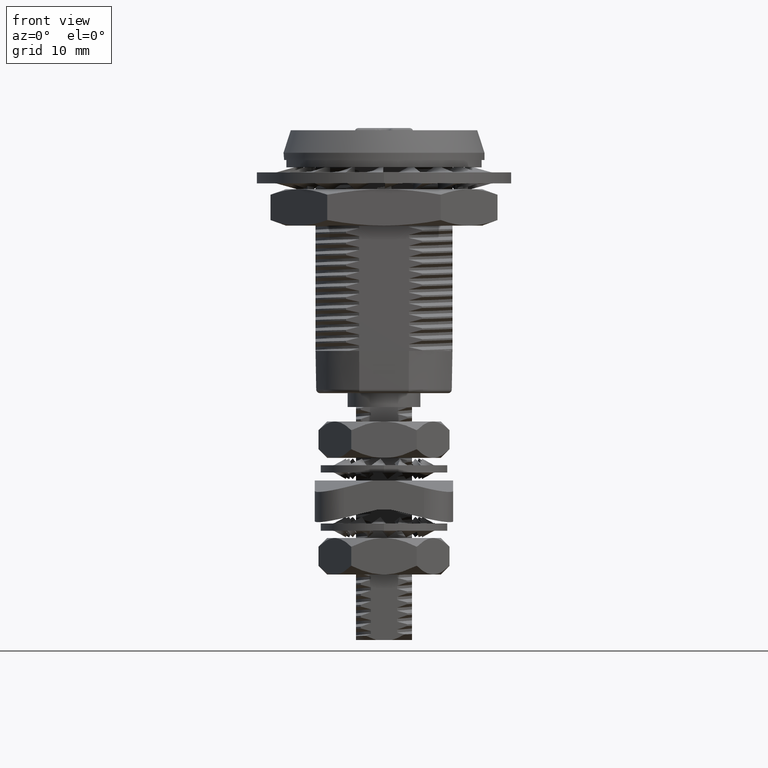
[diagram: clean part render]
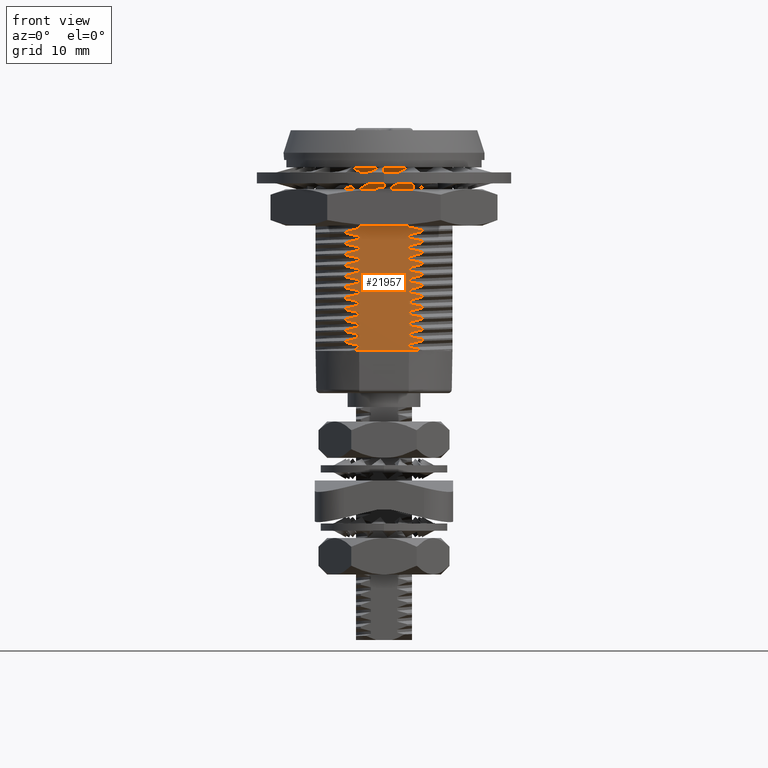
[diagram: same view with one face highlighted and labeled with its STEP entity id]
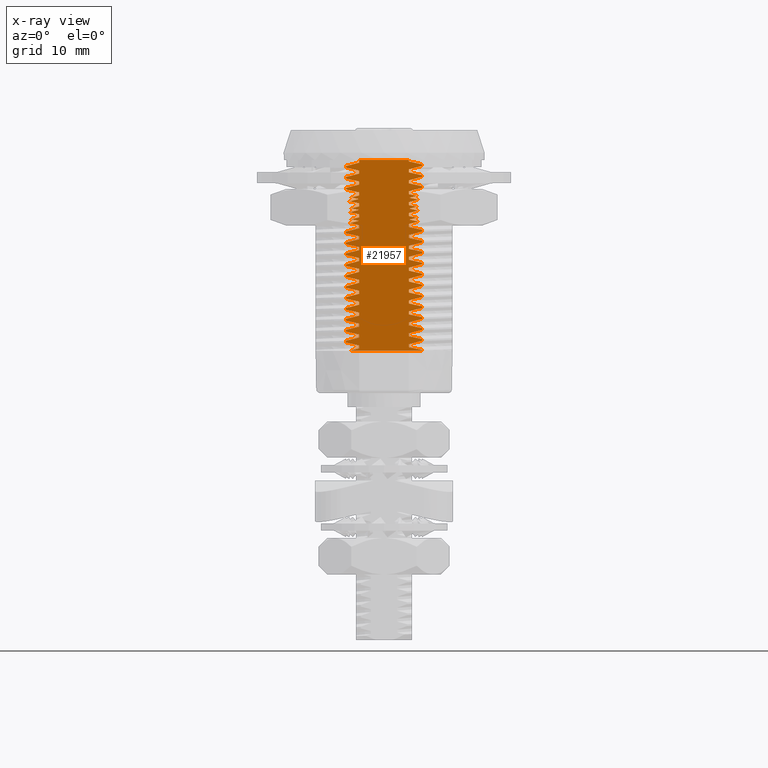
[diagram: x-ray of the same camera — body ghosted, the highlighted face saturated]
A machine part, front view. The second image highlights one B-rep face of the part: STEP entity #21957.
The next image is the same camera in x-ray: the body ghosted, the highlighted face saturated — about 0% of this face is hidden behind the body in this view.
In plain terms, the highlighted planar face has unit normal (0, -1, 0).
Its self-contained STEP definition (entity closure, byte-faithful):
#383=PLANE('',#23241);
#506=CIRCLE('',#22993,18.7333169695501);
#1736=FACE_OUTER_BOUND('',#2975,.T.);
#2975=EDGE_LOOP('',(#15591,#15592,#15593,#15594,#15595,#15596,#15597,#15598,
#15599,#15600,#15601,#15602,#15603,#15604,#15605,#15606,#15607,#15608,#15609,
#15610,#15611,#15612,#15613,#15614,#15615,#15616,#15617,#15618,#15619,#15620,
#15621,#15622,#15623,#15624,#15625,#15626,#15627,#15628,#15629,#15630,#15631,
#15632,#15633,#15634,#15635,#15636,#15637,#15638,#15639,#15640,#15641,#15642,
#15643,#15644,#15645,#15646,#15647,#15648,#15649,#15650,#15651,#15652,#15653,
#15654,#15655,#15656,#15657,#15658,#15659,#15660,#15661,#15662,#15663,#15664,
#15665,#15666,#15667,#15668,#15669,#15670,#15671,#15672,#15673,#15674,#15675,
#15676,#15677,#15678,#15679,#15680,#15681,#15682,#15683,#15684,#15685,#15686,
#15687,#15688,#15689,#15690,#15691,#15692,#15693,#15694,#15695,#15696,#15697,
#15698,#15699,#15700,#15701,#15702,#15703,#15704,#15705,#15706,#15707,#15708,
#15709,#15710,#15711,#15712,#15713,#15714,#15715,#15716,#15717,#15718,#15719,
#15720,#15721,#15722,#15723,#15724,#15725,#15726,#15727,#15728,#15729,#15730,
#15731,#15732,#15733,#15734,#15735,#15736,#15737,#15738,#15739,#15740,#15741,
#15742));
#4069=B_SPLINE_CURVE_WITH_KNOTS('',3,(#29659,#29660,#29661,#29662,#29663,
#29664),.UNSPECIFIED.,.F.,.F.,(4,2,4),(9.99999990717123E-7,0.065536929835989,
0.131071816481534),.UNSPECIFIED.);
#4071=B_SPLINE_CURVE_WITH_KNOTS('',3,(#29672,#29673,#29674,#29675),
 .UNSPECIFIED.,.F.,.F.,(4,4),(0.,1.),.UNSPECIFIED.);
#4085=B_SPLINE_CURVE_WITH_KNOTS('',3,(#29755,#29756,#29757,#29758,#29759,
#29760),.UNSPECIFIED.,.F.,.F.,(4,2,4),(9.99999991795943E-7,0.0655369298341261,
0.13107181647811),.UNSPECIFIED.);
#4087=B_SPLINE_CURVE_WITH_KNOTS('',3,(#29768,#29769,#29770,#29771),
 .UNSPECIFIED.,.F.,.F.,(4,4),(0.,1.),.UNSPECIFIED.);
#4106=B_SPLINE_CURVE_WITH_KNOTS('',3,(#29901,#29902,#29903,#29904,#29905,
#29906),.UNSPECIFIED.,.F.,.F.,(4,2,4),(9.99999995024368E-7,0.0655437280251595,
0.131086404383122),.UNSPECIFIED.);
#4108=B_SPLINE_CURVE_WITH_KNOTS('',3,(#29915,#29916,#29917,#29918),
 .UNSPECIFIED.,.F.,.F.,(4,4),(0.,1.),.UNSPECIFIED.);
#4111=B_SPLINE_CURVE_WITH_KNOTS('',3,(#30032,#30033,#30034,#30035),
 .UNSPECIFIED.,.F.,.F.,(4,4),(0.,1.),.UNSPECIFIED.);
#4112=B_SPLINE_CURVE_WITH_KNOTS('',3,(#30037,#30038,#30039,#30040),
 .UNSPECIFIED.,.F.,.F.,(4,4),(0.,1.),.UNSPECIFIED.);
#4129=B_SPLINE_CURVE_WITH_KNOTS('',3,(#30160,#30161,#30162,#30163),
 .UNSPECIFIED.,.F.,.F.,(4,4),(0.,1.),.UNSPECIFIED.);
#4130=B_SPLINE_CURVE_WITH_KNOTS('',3,(#30165,#30166,#30167,#30168),
 .UNSPECIFIED.,.F.,.F.,(4,4),(0.,1.),.UNSPECIFIED.);
#4141=B_SPLINE_CURVE_WITH_KNOTS('',3,(#30220,#30221,#30222,#30223),
 .UNSPECIFIED.,.F.,.F.,(4,4),(0.,1.),.UNSPECIFIED.);
#4142=B_SPLINE_CURVE_WITH_KNOTS('',3,(#30225,#30226,#30227,#30228),
 .UNSPECIFIED.,.F.,.F.,(4,4),(0.,1.),.UNSPECIFIED.);
#4289=B_SPLINE_CURVE_WITH_KNOTS('',3,(#36667,#36668,#36669,#36670,#36671,
#36672),.UNSPECIFIED.,.F.,.F.,(4,2,4),(1.00000000798328E-6,0.0694248275339927,
0.138849669224448),.UNSPECIFIED.);
#4292=B_SPLINE_CURVE_WITH_KNOTS('',3,(#37033,#37034,#37035,#37036,#37037,
#37038),.UNSPECIFIED.,.F.,.F.,(4,2,4),(9.99999983353001E-7,0.0694253275306989,
0.138849669225608),.UNSPECIFIED.);
#4295=B_SPLINE_CURVE_WITH_KNOTS('',3,(#37399,#37400,#37401,#37402,#37403,
#37404),.UNSPECIFIED.,.F.,.F.,(4,2,4),(9.99999981006141E-7,0.0694258275569909,
0.138849669224399),.UNSPECIFIED.);
#4297=B_SPLINE_CURVE_WITH_KNOTS('',3,(#37760,#37761,#37762,#37763),
 .UNSPECIFIED.,.F.,.F.,(4,4),(0.,1.),.UNSPECIFIED.);
#4300=B_SPLINE_CURVE_WITH_KNOTS('',3,(#38126,#38127,#38128,#38129),
 .UNSPECIFIED.,.F.,.F.,(4,4),(0.,1.),.UNSPECIFIED.);
#4303=B_SPLINE_CURVE_WITH_KNOTS('',3,(#38492,#38493,#38494,#38495),
 .UNSPECIFIED.,.F.,.F.,(4,4),(0.,1.),.UNSPECIFIED.);
#4324=B_SPLINE_CURVE_WITH_KNOTS('',3,(#41054,#41055,#41056,#41057),
 .UNSPECIFIED.,.F.,.F.,(4,4),(0.,1.),.UNSPECIFIED.);
#4327=B_SPLINE_CURVE_WITH_KNOTS('',3,(#41418,#41419,#41420,#41421),
 .UNSPECIFIED.,.F.,.F.,(4,4),(0.,1.),.UNSPECIFIED.);
#4330=B_SPLINE_CURVE_WITH_KNOTS('',3,(#41782,#41783,#41784,#41785),
 .UNSPECIFIED.,.F.,.F.,(4,4),(0.,1.),.UNSPECIFIED.);
#4334=B_SPLINE_CURVE_WITH_KNOTS('',3,(#42151,#42152,#42153,#42154),
 .UNSPECIFIED.,.F.,.F.,(4,4),(0.,1.),.UNSPECIFIED.);
#4337=B_SPLINE_CURVE_WITH_KNOTS('',3,(#42515,#42516,#42517,#42518),
 .UNSPECIFIED.,.F.,.F.,(4,4),(0.,1.),.UNSPECIFIED.);
#4340=B_SPLINE_CURVE_WITH_KNOTS('',3,(#42879,#42880,#42881,#42882),
 .UNSPECIFIED.,.F.,.F.,(4,4),(0.,1.),.UNSPECIFIED.);
#4422=B_SPLINE_CURVE_WITH_KNOTS('',3,(#46067,#46068,#46069,#46070),
 .UNSPECIFIED.,.F.,.F.,(4,4),(0.,1.),.UNSPECIFIED.);
#4423=B_SPLINE_CURVE_WITH_KNOTS('',3,(#46075,#46076,#46077,#46078,#46079,
#46080,#46081),.UNSPECIFIED.,.F.,.F.,(4,3,4),(9.9999999397804E-7,0.0932157714071061,
0.186431291426849),.UNSPECIFIED.);
#4424=B_SPLINE_CURVE_WITH_KNOTS('',3,(#46085,#46086,#46087,#46088,#46089,
#46090,#46091),.UNSPECIFIED.,.F.,.F.,(4,3,4),(9.99999988027252E-7,0.0923412783833649,
0.184682582936207),.UNSPECIFIED.);
#4425=B_SPLINE_CURVE_WITH_KNOTS('',3,(#46095,#46096,#46097,#46098,#46099,
#46100),.UNSPECIFIED.,.F.,.F.,(4,2,4),(9.99999994089062E-7,0.093215771340077,
0.186431291427206),.UNSPECIFIED.);
#4426=B_SPLINE_CURVE_WITH_KNOTS('',3,(#46104,#46105,#46106,#46107,#46108,
#46109,#46110),.UNSPECIFIED.,.F.,.F.,(4,3,4),(9.99999991208819E-7,0.0923412783824352,
0.184682582934803),.UNSPECIFIED.);
#4427=B_SPLINE_CURVE_WITH_KNOTS('',3,(#46114,#46115,#46116,#46117,#46118,
#46119),.UNSPECIFIED.,.F.,.F.,(4,2,4),(9.99999993658851E-7,0.0932157713399882,
0.186431291427011),.UNSPECIFIED.);
#4428=B_SPLINE_CURVE_WITH_KNOTS('',3,(#46123,#46124,#46125,#46126,#46127,
#46128,#46129),.UNSPECIFIED.,.F.,.F.,(4,3,4),(9.99999999265477E-7,0.0923407783810291,
0.184682582937345),.UNSPECIFIED.);
#4429=B_SPLINE_CURVE_WITH_KNOTS('',3,(#46133,#46134,#46135,#46136,#46137,
#46138,#46139),.UNSPECIFIED.,.F.,.F.,(4,3,4),(1.00000000575333E-6,0.0932152713407623,
0.186431291427106),.UNSPECIFIED.);
#4430=B_SPLINE_CURVE_WITH_KNOTS('',3,(#46143,#46144,#46145,#46146,#46147,
#46148),.UNSPECIFIED.,.F.,.F.,(4,2,4),(9.9999999003688E-7,0.0923407784530432,
0.184682582934069),.UNSPECIFIED.);
#4431=B_SPLINE_CURVE_WITH_KNOTS('',3,(#46152,#46153,#46154,#46155,#46156,
#46157),.UNSPECIFIED.,.F.,.F.,(4,2,4),(9.99999995504597E-7,0.0932157713399081,
0.186431291426818),.UNSPECIFIED.);
#4432=B_SPLINE_CURVE_WITH_KNOTS('',3,(#46161,#46162,#46163,#46164,#46165,
#46166,#46167),.UNSPECIFIED.,.F.,.F.,(4,3,4),(1.00000001395397E-6,0.0923407783810777,
0.184682582937144),.UNSPECIFIED.);
#4433=B_SPLINE_CURVE_WITH_KNOTS('',3,(#46171,#46172,#46173,#46174,#46175,
#46176),.UNSPECIFIED.,.F.,.F.,(4,2,4),(9.99999994703257E-7,0.0932157713402021,
0.186431291427931),.UNSPECIFIED.);
#4434=B_SPLINE_CURVE_WITH_KNOTS('',3,(#46180,#46181,#46182,#46183,#46184,
#46185,#46186),.UNSPECIFIED.,.F.,.F.,(4,3,4),(1.00000000372351E-6,0.0923402784507086,
0.184682582934803),.UNSPECIFIED.);
#4435=B_SPLINE_CURVE_WITH_KNOTS('',3,(#46190,#46191,#46192,#46193,#46194,
#46195,#46196),.UNSPECIFIED.,.F.,.F.,(4,3,4),(9.99999989970564E-7,0.0932162714064548,
0.186431291427186),.UNSPECIFIED.);
#4436=B_SPLINE_CURVE_WITH_KNOTS('',3,(#46200,#46201,#46202,#46203,#46204,
#46205),.UNSPECIFIED.,.F.,.F.,(4,2,4),(9.99999978897046E-7,0.0923407784540929,
0.184682582936768),.UNSPECIFIED.);
#4437=B_SPLINE_CURVE_WITH_KNOTS('',3,(#46209,#46210,#46211,#46212,#46213,
#46214),.UNSPECIFIED.,.F.,.F.,(4,2,4),(9.99999975845856E-7,0.0932157713404944,
0.186431291428829),.UNSPECIFIED.);
#4438=B_SPLINE_CURVE_WITH_KNOTS('',3,(#46218,#46219,#46220,#46221,#46222,
#46223,#46224),.UNSPECIFIED.,.F.,.F.,(4,3,4),(9.9999997717505E-7,0.0923412783815231,
0.184682582932625),.UNSPECIFIED.);
#4439=B_SPLINE_CURVE_WITH_KNOTS('',3,(#46228,#46229,#46230,#46231,#46232,
#46233,#46234),.UNSPECIFIED.,.F.,.F.,(4,3,4),(1.00000000216523E-6,0.0932152713408474,
0.186431291427942),.UNSPECIFIED.);
#4440=B_SPLINE_CURVE_WITH_KNOTS('',3,(#46238,#46239,#46240,#46241,#46242,
#46243,#46244),.UNSPECIFIED.,.F.,.F.,(4,3,4),(1.00000000760746E-6,0.0923402784513039,
0.18468258293678),.UNSPECIFIED.);
#4441=B_SPLINE_CURVE_WITH_KNOTS('',3,(#46248,#46249,#46250,#46251,#46252,
#46253,#46254),.UNSPECIFIED.,.F.,.F.,(4,3,4),(9.99999978530119E-7,0.093216271406607,
0.186431291427685),.UNSPECIFIED.);
#4442=B_SPLINE_CURVE_WITH_KNOTS('',3,(#46258,#46259,#46260,#46261,#46262,
#46263,#46264),.UNSPECIFIED.,.F.,.F.,(4,3,4),(9.99999986063703E-7,0.0923412783831923,
0.184682582935605),.UNSPECIFIED.);
#4443=B_SPLINE_CURVE_WITH_KNOTS('',3,(#46268,#46269,#46270,#46271,#46272,
#46273),.UNSPECIFIED.,.F.,.F.,(4,2,4),(9.99999976253823E-7,0.0932157713401412,
0.186431291427969),.UNSPECIFIED.);
#4444=B_SPLINE_CURVE_WITH_KNOTS('',3,(#46277,#46278,#46279,#46280,#46281,
#46282,#46283),.UNSPECIFIED.,.F.,.F.,(4,3,4),(1.00000000418384E-6,0.0923402784517221,
0.184682582937575),.UNSPECIFIED.);
#4445=B_SPLINE_CURVE_WITH_KNOTS('',3,(#46287,#46288,#46289,#46290,#46291,
#46292),.UNSPECIFIED.,.F.,.F.,(4,2,4),(9.99999997301231E-7,0.0696992597856303,
0.139397536561677),.UNSPECIFIED.);
#4446=B_SPLINE_CURVE_WITH_KNOTS('',3,(#46302,#46303,#46304,#46305,#46306,
#46307,#46308),.UNSPECIFIED.,.F.,.F.,(4,3,4),(9.99999992603989E-7,0.0923402784503553,
0.184682582933866),.UNSPECIFIED.);
#4447=B_SPLINE_CURVE_WITH_KNOTS('',3,(#46312,#46313,#46314,#46315,#46316,
#46317,#46318),.UNSPECIFIED.,.F.,.F.,(4,3,4),(9.99999984306562E-7,0.0932162714064242,
0.186431291426992),.UNSPECIFIED.);
#4448=B_SPLINE_CURVE_WITH_KNOTS('',3,(#46322,#46323,#46324,#46325,#46326,
#46327),.UNSPECIFIED.,.F.,.F.,(4,2,4),(9.99999991453403E-7,0.0923407784545898,
0.184682582937103),.UNSPECIFIED.);
#4449=B_SPLINE_CURVE_WITH_KNOTS('',3,(#46331,#46332,#46333,#46334,#46335,
#46336,#46337),.UNSPECIFIED.,.F.,.F.,(4,3,4),(1.00000001318309E-6,0.0932152713407236,
0.186431291427042),.UNSPECIFIED.);
#4450=B_SPLINE_CURVE_WITH_KNOTS('',3,(#46341,#46342,#46343,#46344,#46345,
#46346,#46347),.UNSPECIFIED.,.F.,.F.,(4,3,4),(9.99999983515707E-7,0.0923412783814674,
0.184682582932638),.UNSPECIFIED.);
#4451=B_SPLINE_CURVE_WITH_KNOTS('',3,(#46351,#46352,#46353,#46354,#46355,
#46356,#46357),.UNSPECIFIED.,.F.,.F.,(4,3,4),(1.00000000157231E-6,0.093215771407268,
0.186431291427551),.UNSPECIFIED.);
#4452=B_SPLINE_CURVE_WITH_KNOTS('',3,(#46361,#46362,#46363,#46364,#46365,
#46366),.UNSPECIFIED.,.F.,.F.,(4,2,4),(9.999999906606E-7,0.092340778454655,
0.184682582937412),.UNSPECIFIED.);
#4453=B_SPLINE_CURVE_WITH_KNOTS('',3,(#46370,#46371,#46372,#46373,#46374,
#46375),.UNSPECIFIED.,.F.,.F.,(4,2,4),(9.99999984635276E-7,0.0932157713399787,
0.186431291426863),.UNSPECIFIED.);
#4454=B_SPLINE_CURVE_WITH_KNOTS('',3,(#46379,#46380,#46381,#46382,#46383,
#46384),.UNSPECIFIED.,.F.,.F.,(4,2,4),(9.99999987065981E-7,0.0923407784523237,
0.184682582932966),.UNSPECIFIED.);
#4455=B_SPLINE_CURVE_WITH_KNOTS('',3,(#46388,#46389,#46390,#46391,#46392,
#46393,#46394),.UNSPECIFIED.,.F.,.F.,(4,3,4),(9.99999995097168E-7,0.0932162714063571,
0.186431291426817),.UNSPECIFIED.);
#4456=B_SPLINE_CURVE_WITH_KNOTS('',3,(#46398,#46399,#46400,#46401,#46402,
#46403),.UNSPECIFIED.,.F.,.F.,(4,2,4),(9.99999986507886E-7,0.0923407784540051,
0.18468258293615),.UNSPECIFIED.);
#4457=B_SPLINE_CURVE_WITH_KNOTS('',3,(#46407,#46408,#46409,#46410,#46411,
#46412,#46413),.UNSPECIFIED.,.F.,.F.,(4,3,4),(1.00000000889666E-6,0.0932157714069152,
0.186431291426305),.UNSPECIFIED.);
#4458=B_SPLINE_CURVE_WITH_KNOTS('',3,(#46417,#46418,#46419,#46420,#46421,
#46422,#46423),.UNSPECIFIED.,.F.,.F.,(4,3,4),(9.9999999044405E-7,0.0923412783826862,
0.184682582934686),.UNSPECIFIED.);
#4459=B_SPLINE_CURVE_WITH_KNOTS('',3,(#46427,#46428,#46429,#46430,#46431,
#46432,#46433),.UNSPECIFIED.,.F.,.F.,(4,3,4),(1.00000000470557E-6,0.0932152713406899,
0.18643129142728),.UNSPECIFIED.);
#4460=B_SPLINE_CURVE_WITH_KNOTS('',3,(#46437,#46438,#46439,#46440,#46441,
#46442),.UNSPECIFIED.,.F.,.F.,(4,2,4),(9.99999990430172E-7,0.092340778452264,
0.184682582932787),.UNSPECIFIED.);
#4461=B_SPLINE_CURVE_WITH_KNOTS('',3,(#46446,#46447,#46448,#46449,#46450,
#46451),.UNSPECIFIED.,.F.,.F.,(4,2,4),(9.99999987007768E-7,0.0932157713402351,
0.186431291427978),.UNSPECIFIED.);
#4462=B_SPLINE_CURVE_WITH_KNOTS('',3,(#46455,#46456,#46457,#46458,#46459,
#46460,#46461),.UNSPECIFIED.,.F.,.F.,(4,3,4),(9.99999986869215E-7,0.0923412783825563,
0.184682582934445),.UNSPECIFIED.);
#4463=B_SPLINE_CURVE_WITH_KNOTS('',3,(#46465,#46466,#46467,#46468,#46469,
#46470,#46471),.UNSPECIFIED.,.F.,.F.,(4,3,4),(1.00000000526068E-6,0.0932152713407126,
0.186431291427229),.UNSPECIFIED.);
#4464=B_SPLINE_CURVE_WITH_KNOTS('',3,(#46475,#46476,#46477,#46478,#46479,
#46480,#46481),.UNSPECIFIED.,.F.,.F.,(4,3,4),(9.99999990988232E-7,0.0923412783827067,
0.18468258293488),.UNSPECIFIED.);
#4465=B_SPLINE_CURVE_WITH_KNOTS('',3,(#46485,#46486,#46487,#46488,#46489,
#46490,#46491),.UNSPECIFIED.,.F.,.F.,(4,3,4),(9.99999987036994E-7,0.0932162714064162,
0.186431291427113),.UNSPECIFIED.);
#4466=B_SPLINE_CURVE_WITH_KNOTS('',3,(#46495,#46496,#46497,#46498,#46499,
#46500),.UNSPECIFIED.,.F.,.F.,(4,2,4),(9.99999982537639E-7,0.0923407784542795,
0.184682582937047),.UNSPECIFIED.);
#4467=B_SPLINE_CURVE_WITH_KNOTS('',3,(#46504,#46505,#46506,#46507,#46508,
#46509),.UNSPECIFIED.,.F.,.F.,(4,2,4),(9.99999969782182E-7,0.0932157713399269,
0.186431291427105),.UNSPECIFIED.);
#4468=B_SPLINE_CURVE_WITH_KNOTS('',3,(#46513,#46514,#46515,#46516,#46517,
#46518,#46519),.UNSPECIFIED.,.F.,.F.,(4,3,4),(1.00000000034405E-6,0.0923407783792919,
0.184682582933407),.UNSPECIFIED.);
#4469=B_SPLINE_CURVE_WITH_KNOTS('',3,(#46526,#46527,#46528,#46529,#46530,
#46531,#46532),.UNSPECIFIED.,.F.,.F.,(4,3,4),(9.99999980603702E-7,0.0932162714063513,
0.186431291426718),.UNSPECIFIED.);
#4470=B_SPLINE_CURVE_WITH_KNOTS('',3,(#46536,#46537,#46538,#46539,#46540,
#46541),.UNSPECIFIED.,.F.,.F.,(4,2,4),(9.99999986332394E-7,0.0923407784526487,
0.18468258293327),.UNSPECIFIED.);
#4471=B_SPLINE_CURVE_WITH_KNOTS('',3,(#46545,#46546,#46547,#46548,#46549,
#46550,#46551),.UNSPECIFIED.,.F.,.F.,(4,3,4),(1.00000000982647E-6,0.09321577140725,
0.186431291427556),.UNSPECIFIED.);
#4472=B_SPLINE_CURVE_WITH_KNOTS('',3,(#46555,#46556,#46557,#46558,#46559,
#46560,#46561),.UNSPECIFIED.,.F.,.F.,(4,3,4),(9.99999996957848E-7,0.0923407783809594,
0.184682582937055),.UNSPECIFIED.);
#4473=B_SPLINE_CURVE_WITH_KNOTS('',3,(#46565,#46566,#46567,#46568,#46569,
#46570,#46571),.UNSPECIFIED.,.F.,.F.,(4,3,4),(1.00000000974321E-6,0.0932152713407151,
0.186431291427232),.UNSPECIFIED.);
#4474=B_SPLINE_CURVE_WITH_KNOTS('',3,(#46575,#46576,#46577,#46578,#46579,
#46580,#46581),.UNSPECIFIED.,.F.,.F.,(4,3,4),(9.99999989743138E-7,0.0923412783832984,
0.184682582936059),.UNSPECIFIED.);
#4475=B_SPLINE_CURVE_WITH_KNOTS('',3,(#46589,#46590,#46591,#46592,#46593,
#46594,#46595),.UNSPECIFIED.,.F.,.F.,(4,3,4),(1.00000000608536E-6,0.0932152713407343,
0.186431291427304),.UNSPECIFIED.);
#4476=B_SPLINE_CURVE_WITH_KNOTS('',3,(#46599,#46600,#46601,#46602,#46603,
#46604,#46605),.UNSPECIFIED.,.F.,.F.,(4,3,4),(9.99999988543362E-7,0.0923412783833141,
0.184682582936004),.UNSPECIFIED.);
#4477=B_SPLINE_CURVE_WITH_KNOTS('',3,(#46609,#46610,#46611,#46612,#46613,
#46614),.UNSPECIFIED.,.F.,.F.,(4,2,4),(9.99999983793126E-7,0.0932157713399593,
0.186431291426963),.UNSPECIFIED.);
#4478=B_SPLINE_CURVE_WITH_KNOTS('',3,(#46618,#46619,#46620,#46621,#46622,
#46623,#46624),.UNSPECIFIED.,.F.,.F.,(4,3,4),(1.00000000483047E-6,0.0923407783812851,
0.18468258293766),.UNSPECIFIED.);
#4479=B_SPLINE_CURVE_WITH_KNOTS('',3,(#46628,#46629,#46630,#46631,#46632,
#46633,#46634),.UNSPECIFIED.,.F.,.F.,(4,3,4),(9.99999999164916E-7,0.0932152713407319,
0.186431291427318),.UNSPECIFIED.);
#5889=LINE('',#46073,#7224);
#5890=LINE('',#46083,#7225);
#5891=LINE('',#46093,#7226);
#5892=LINE('',#46102,#7227);
#5893=LINE('',#46112,#7228);
#5894=LINE('',#46121,#7229);
#5895=LINE('',#46131,#7230);
#5896=LINE('',#46141,#7231);
#5897=LINE('',#46150,#7232);
#5898=LINE('',#46159,#7233);
#5899=LINE('',#46169,#7234);
#5900=LINE('',#46178,#7235);
#5901=LINE('',#46188,#7236);
#5902=LINE('',#46198,#7237);
#5903=LINE('',#46207,#7238);
#5904=LINE('',#46216,#7239);
#5905=LINE('',#46226,#7240);
#5906=LINE('',#46236,#7241);
#5907=LINE('',#46246,#7242);
#5908=LINE('',#46256,#7243);
#5909=LINE('',#46266,#7244);
#5910=LINE('',#46275,#7245);
#5911=LINE('',#46285,#7246);
#5912=LINE('',#46294,#7247);
#5913=LINE('',#46296,#7248);
#5914=LINE('',#46298,#7249);
#5915=LINE('',#46300,#7250);
#5916=LINE('',#46310,#7251);
#5917=LINE('',#46320,#7252);
#5918=LINE('',#46329,#7253);
#5919=LINE('',#46339,#7254);
#5920=LINE('',#46349,#7255);
#5921=LINE('',#46359,#7256);
#5922=LINE('',#46368,#7257);
#5923=LINE('',#46377,#7258);
#5924=LINE('',#46386,#7259);
#5925=LINE('',#46396,#7260);
#5926=LINE('',#46405,#7261);
#5927=LINE('',#46415,#7262);
#5928=LINE('',#46425,#7263);
#5929=LINE('',#46435,#7264);
#5930=LINE('',#46444,#7265);
#5931=LINE('',#46453,#7266);
#5932=LINE('',#46463,#7267);
#5933=LINE('',#46473,#7268);
#5934=LINE('',#46483,#7269);
#5935=LINE('',#46493,#7270);
#5936=LINE('',#46502,#7271);
#5937=LINE('',#46511,#7272);
#5938=LINE('',#46520,#7273);
#5939=LINE('',#46521,#7274);
#5940=LINE('',#46522,#7275);
#5941=LINE('',#46524,#7276);
#5942=LINE('',#46534,#7277);
#5943=LINE('',#46543,#7278);
#5944=LINE('',#46553,#7279);
#5945=LINE('',#46563,#7280);
#5946=LINE('',#46573,#7281);
#5947=LINE('',#46583,#7282);
#5948=LINE('',#46585,#7283);
#5949=LINE('',#46587,#7284);
#5950=LINE('',#46597,#7285);
#5951=LINE('',#46607,#7286);
#5952=LINE('',#46616,#7287);
#5953=LINE('',#46626,#7288);
#5954=LINE('',#46635,#7289);
#5955=LINE('',#46636,#7290);
#5956=LINE('',#46637,#7291);
#5957=LINE('',#46638,#7292);
#7224=VECTOR('',#25210,0.4039486384532);
#7225=VECTOR('',#25211,0.2300262264466);
#7226=VECTOR('',#25212,0.4039486384532);
#7227=VECTOR('',#25213,0.2300262264466);
#7228=VECTOR('',#25214,0.4039486384532);
#7229=VECTOR('',#25215,0.230026226446602);
#7230=VECTOR('',#25216,0.403948638453704);
#7231=VECTOR('',#25217,0.2300262264466);
#7232=VECTOR('',#25218,0.403948638453802);
#7233=VECTOR('',#25219,0.2300262264467);
#7234=VECTOR('',#25220,0.403948638453699);
#7235=VECTOR('',#25221,0.2300262264467);
#7236=VECTOR('',#25222,0.4039486384531);
#7237=VECTOR('',#25223,0.2300262264467);
#7238=VECTOR('',#25224,0.403948638453704);
#7239=VECTOR('',#25225,0.2300262264467);
#7240=VECTOR('',#25226,0.403948638453202);
#7241=VECTOR('',#25227,0.2300262264467);
#7242=VECTOR('',#25228,0.403948638453699);
#7243=VECTOR('',#25229,0.2300262264467);
#7244=VECTOR('',#25230,0.4039486384533);
#7245=VECTOR('',#25231,0.2300262264467);
#7246=VECTOR('',#25232,0.403948638453704);
#7247=VECTOR('',#25233,1.35186343405699);
#7248=VECTOR('',#25234,6.82348884369201);
#7249=VECTOR('',#25235,1.80385717336801);
#7250=VECTOR('',#25236,0.110917460473701);
#7251=VECTOR('',#25237,0.403948638453198);
#7252=VECTOR('',#25238,0.230026226446602);
#7253=VECTOR('',#25239,0.403948638453699);
#7254=VECTOR('',#25240,0.2300262264467);
#7255=VECTOR('',#25241,0.403948638453198);
#7256=VECTOR('',#25242,0.230026226446602);
#7257=VECTOR('',#25243,0.403948638453802);
#7258=VECTOR('',#25244,0.230026226446598);
#7259=VECTOR('',#25245,0.403948638453198);
#7260=VECTOR('',#25246,0.230026226446602);
#7261=VECTOR('',#25247,0.403948638453699);
#7262=VECTOR('',#25248,0.230026226446602);
#7263=VECTOR('',#25249,0.403948638453397);
#7264=VECTOR('',#25250,0.230026226446602);
#7265=VECTOR('',#25251,0.403948638453098);
#7266=VECTOR('',#25252,0.2300262264467);
#7267=VECTOR('',#25253,0.4039486384529);
#7268=VECTOR('',#25254,0.2300262264467);
#7269=VECTOR('',#25255,0.4039486384532);
#7270=VECTOR('',#25256,0.2300262264467);
#7271=VECTOR('',#25257,0.403948638453799);
#7272=VECTOR('',#25258,0.2300262264467);
#7273=VECTOR('',#25259,0.4039486384531);
#7274=VECTOR('',#25260,0.403948638453799);
#7275=VECTOR('',#25261,0.4039486384532);
#7276=VECTOR('',#25262,0.403948638453731);
#7277=VECTOR('',#25263,0.230026226446689);
#7278=VECTOR('',#25264,0.40394863845315);
#7279=VECTOR('',#25265,0.230026226446679);
#7280=VECTOR('',#25266,0.403948638453739);
#7281=VECTOR('',#25267,0.230026226446679);
#7282=VECTOR('',#25268,0.19381291680608);
#7283=VECTOR('',#25269,6.82348884369201);
#7284=VECTOR('',#25270,0.36013572164761);
#7285=VECTOR('',#25271,0.23002622644668);
#7286=VECTOR('',#25272,0.403948638453681);
#7287=VECTOR('',#25273,0.230026226446681);
#7288=VECTOR('',#25274,0.403948638453679);
#7289=VECTOR('',#25275,0.16910876597296);
#7290=VECTOR('',#25276,0.403948638453701);
#7291=VECTOR('',#25277,0.403948638453002);
#7292=VECTOR('',#25278,0.403948638453699);
#8241=VERTEX_POINT('',#29580);
#8253=VERTEX_POINT('',#29652);
#8254=VERTEX_POINT('',#29658);
#8255=VERTEX_POINT('',#29665);
#8256=VERTEX_POINT('',#29671);
#8269=VERTEX_POINT('',#29748);
#8270=VERTEX_POINT('',#29754);
#8271=VERTEX_POINT('',#29761);
#8272=VERTEX_POINT('',#29767);
#8291=VERTEX_POINT('',#29893);
#8292=VERTEX_POINT('',#29900);
#8293=VERTEX_POINT('',#29907);
#8295=VERTEX_POINT('',#30026);
#8296=VERTEX_POINT('',#30036);
#8312=VERTEX_POINT('',#30154);
#8313=VERTEX_POINT('',#30164);
#8320=VERTEX_POINT('',#30214);
#8321=VERTEX_POINT('',#30224);
#8327=VERTEX_POINT('',#30270);
#8328=VERTEX_POINT('',#30278);
#8678=VERTEX_POINT('',#36666);
#8680=VERTEX_POINT('',#37032);
#8682=VERTEX_POINT('',#37398);
#8683=VERTEX_POINT('',#37759);
#8685=VERTEX_POINT('',#38125);
#8687=VERTEX_POINT('',#38491);
#8701=VERTEX_POINT('',#41053);
#8703=VERTEX_POINT('',#41417);
#8705=VERTEX_POINT('',#41781);
#8708=VERTEX_POINT('',#42150);
#8710=VERTEX_POINT('',#42514);
#8712=VERTEX_POINT('',#42878);
#8848=VERTEX_POINT('',#46016);
#8849=VERTEX_POINT('',#46072);
#8850=VERTEX_POINT('',#46074);
#8851=VERTEX_POINT('',#46082);
#8852=VERTEX_POINT('',#46084);
#8853=VERTEX_POINT('',#46092);
#8854=VERTEX_POINT('',#46094);
#8855=VERTEX_POINT('',#46101);
#8856=VERTEX_POINT('',#46103);
#8857=VERTEX_POINT('',#46111);
#8858=VERTEX_POINT('',#46113);
#8859=VERTEX_POINT('',#46120);
#8860=VERTEX_POINT('',#46122);
#8861=VERTEX_POINT('',#46130);
#8862=VERTEX_POINT('',#46132);
#8863=VERTEX_POINT('',#46140);
#8864=VERTEX_POINT('',#46142);
#8865=VERTEX_POINT('',#46149);
#8866=VERTEX_POINT('',#46151);
#8867=VERTEX_POINT('',#46158);
#8868=VERTEX_POINT('',#46160);
#8869=VERTEX_POINT('',#46168);
#8870=VERTEX_POINT('',#46170);
#8871=VERTEX_POINT('',#46177);
#8872=VERTEX_POINT('',#46179);
#8873=VERTEX_POINT('',#46187);
#8874=VERTEX_POINT('',#46189);
#8875=VERTEX_POINT('',#46197);
#8876=VERTEX_POINT('',#46199);
#8877=VERTEX_POINT('',#46206);
#8878=VERTEX_POINT('',#46208);
#8879=VERTEX_POINT('',#46215);
#8880=VERTEX_POINT('',#46217);
#8881=VERTEX_POINT('',#46225);
#8882=VERTEX_POINT('',#46227);
#8883=VERTEX_POINT('',#46235);
#8884=VERTEX_POINT('',#46237);
#8885=VERTEX_POINT('',#46245);
#8886=VERTEX_POINT('',#46247);
#8887=VERTEX_POINT('',#46255);
#8888=VERTEX_POINT('',#46257);
#8889=VERTEX_POINT('',#46265);
#8890=VERTEX_POINT('',#46267);
#8891=VERTEX_POINT('',#46274);
#8892=VERTEX_POINT('',#46276);
#8893=VERTEX_POINT('',#46284);
#8894=VERTEX_POINT('',#46286);
#8895=VERTEX_POINT('',#46293);
#8896=VERTEX_POINT('',#46295);
#8897=VERTEX_POINT('',#46297);
#8898=VERTEX_POINT('',#46299);
#8899=VERTEX_POINT('',#46301);
#8900=VERTEX_POINT('',#46309);
#8901=VERTEX_POINT('',#46311);
#8902=VERTEX_POINT('',#46319);
#8903=VERTEX_POINT('',#46321);
#8904=VERTEX_POINT('',#46328);
#8905=VERTEX_POINT('',#46330);
#8906=VERTEX_POINT('',#46338);
#8907=VERTEX_POINT('',#46340);
#8908=VERTEX_POINT('',#46348);
#8909=VERTEX_POINT('',#46350);
#8910=VERTEX_POINT('',#46358);
#8911=VERTEX_POINT('',#46360);
#8912=VERTEX_POINT('',#46367);
#8913=VERTEX_POINT('',#46369);
#8914=VERTEX_POINT('',#46376);
#8915=VERTEX_POINT('',#46378);
#8916=VERTEX_POINT('',#46385);
#8917=VERTEX_POINT('',#46387);
#8918=VERTEX_POINT('',#46395);
#8919=VERTEX_POINT('',#46397);
#8920=VERTEX_POINT('',#46404);
#8921=VERTEX_POINT('',#46406);
#8922=VERTEX_POINT('',#46414);
#8923=VERTEX_POINT('',#46416);
#8924=VERTEX_POINT('',#46424);
#8925=VERTEX_POINT('',#46426);
#8926=VERTEX_POINT('',#46434);
#8927=VERTEX_POINT('',#46436);
#8928=VERTEX_POINT('',#46443);
#8929=VERTEX_POINT('',#46445);
#8930=VERTEX_POINT('',#46452);
#8931=VERTEX_POINT('',#46454);
#8932=VERTEX_POINT('',#46462);
#8933=VERTEX_POINT('',#46464);
#8934=VERTEX_POINT('',#46472);
#8935=VERTEX_POINT('',#46474);
#8936=VERTEX_POINT('',#46482);
#8937=VERTEX_POINT('',#46484);
#8938=VERTEX_POINT('',#46492);
#8939=VERTEX_POINT('',#46494);
#8940=VERTEX_POINT('',#46501);
#8941=VERTEX_POINT('',#46503);
#8942=VERTEX_POINT('',#46510);
#8943=VERTEX_POINT('',#46512);
#8944=VERTEX_POINT('',#46523);
#8945=VERTEX_POINT('',#46525);
#8946=VERTEX_POINT('',#46533);
#8947=VERTEX_POINT('',#46535);
#8948=VERTEX_POINT('',#46542);
#8949=VERTEX_POINT('',#46544);
#8950=VERTEX_POINT('',#46552);
#8951=VERTEX_POINT('',#46554);
#8952=VERTEX_POINT('',#46562);
#8953=VERTEX_POINT('',#46564);
#8954=VERTEX_POINT('',#46572);
#8955=VERTEX_POINT('',#46574);
#8956=VERTEX_POINT('',#46582);
#8957=VERTEX_POINT('',#46584);
#8958=VERTEX_POINT('',#46586);
#8959=VERTEX_POINT('',#46588);
#8960=VERTEX_POINT('',#46596);
#8961=VERTEX_POINT('',#46598);
#8962=VERTEX_POINT('',#46606);
#8963=VERTEX_POINT('',#46608);
#8964=VERTEX_POINT('',#46615);
#8965=VERTEX_POINT('',#46617);
#8966=VERTEX_POINT('',#46625);
#8967=VERTEX_POINT('',#46627);
#10593=EDGE_CURVE('',#8253,#8254,#4069,.T.);
#10595=EDGE_CURVE('',#8255,#8256,#4071,.T.);
#10609=EDGE_CURVE('',#8269,#8270,#4085,.T.);
#10611=EDGE_CURVE('',#8271,#8272,#4087,.T.);
#10632=EDGE_CURVE('',#8291,#8292,#4106,.T.);
#10634=EDGE_CURVE('',#8293,#8241,#4108,.T.);
#10637=EDGE_CURVE('',#8295,#8293,#4111,.T.);
#10638=EDGE_CURVE('',#8292,#8296,#4112,.T.);
#10658=EDGE_CURVE('',#8312,#8271,#4129,.T.);
#10659=EDGE_CURVE('',#8270,#8313,#4130,.T.);
#10670=EDGE_CURVE('',#8320,#8255,#4141,.T.);
#10671=EDGE_CURVE('',#8254,#8321,#4142,.T.);
#10681=EDGE_CURVE('',#8328,#8327,#506,.T.);
#11234=EDGE_CURVE('',#8678,#8272,#4289,.T.);
#11237=EDGE_CURVE('',#8680,#8256,#4292,.T.);
#11240=EDGE_CURVE('',#8682,#8241,#4295,.T.);
#11242=EDGE_CURVE('',#8269,#8683,#4297,.T.);
#11245=EDGE_CURVE('',#8253,#8685,#4300,.T.);
#11248=EDGE_CURVE('',#8291,#8687,#4303,.T.);
#11269=EDGE_CURVE('',#8312,#8701,#4324,.T.);
#11272=EDGE_CURVE('',#8320,#8703,#4327,.T.);
#11275=EDGE_CURVE('',#8295,#8705,#4330,.T.);
#11279=EDGE_CURVE('',#8708,#8313,#4334,.T.);
#11282=EDGE_CURVE('',#8710,#8321,#4337,.T.);
#11285=EDGE_CURVE('',#8712,#8296,#4340,.T.);
#11435=EDGE_CURVE('',#8327,#8848,#4422,.T.);
#11436=EDGE_CURVE('',#8849,#8687,#5889,.T.);
#11437=EDGE_CURVE('',#8849,#8850,#4423,.T.);
#11438=EDGE_CURVE('',#8851,#8850,#5890,.T.);
#11439=EDGE_CURVE('',#8851,#8852,#4424,.T.);
#11440=EDGE_CURVE('',#8853,#8852,#5891,.T.);
#11441=EDGE_CURVE('',#8853,#8854,#4425,.T.);
#11442=EDGE_CURVE('',#8855,#8854,#5892,.T.);
#11443=EDGE_CURVE('',#8855,#8856,#4426,.T.);
#11444=EDGE_CURVE('',#8857,#8856,#5893,.T.);
#11445=EDGE_CURVE('',#8857,#8858,#4427,.T.);
#11446=EDGE_CURVE('',#8859,#8858,#5894,.T.);
#11447=EDGE_CURVE('',#8859,#8860,#4428,.T.);
#11448=EDGE_CURVE('',#8861,#8860,#5895,.T.);
#11449=EDGE_CURVE('',#8861,#8862,#4429,.T.);
#11450=EDGE_CURVE('',#8863,#8862,#5896,.T.);
#11451=EDGE_CURVE('',#8863,#8864,#4430,.T.);
#11452=EDGE_CURVE('',#8865,#8864,#5897,.T.);
#11453=EDGE_CURVE('',#8865,#8866,#4431,.T.);
#11454=EDGE_CURVE('',#8867,#8866,#5898,.T.);
#11455=EDGE_CURVE('',#8867,#8868,#4432,.T.);
#11456=EDGE_CURVE('',#8869,#8868,#5899,.T.);
#11457=EDGE_CURVE('',#8869,#8870,#4433,.T.);
#11458=EDGE_CURVE('',#8871,#8870,#5900,.T.);
#11459=EDGE_CURVE('',#8871,#8872,#4434,.T.);
#11460=EDGE_CURVE('',#8873,#8872,#5901,.T.);
#11461=EDGE_CURVE('',#8873,#8874,#4435,.T.);
#11462=EDGE_CURVE('',#8875,#8874,#5902,.T.);
#11463=EDGE_CURVE('',#8875,#8876,#4436,.T.);
#11464=EDGE_CURVE('',#8877,#8876,#5903,.T.);
#11465=EDGE_CURVE('',#8877,#8878,#4437,.T.);
#11466=EDGE_CURVE('',#8879,#8878,#5904,.T.);
#11467=EDGE_CURVE('',#8879,#8880,#4438,.T.);
#11468=EDGE_CURVE('',#8881,#8880,#5905,.T.);
#11469=EDGE_CURVE('',#8881,#8882,#4439,.T.);
#11470=EDGE_CURVE('',#8883,#8882,#5906,.T.);
#11471=EDGE_CURVE('',#8883,#8884,#4440,.T.);
#11472=EDGE_CURVE('',#8885,#8884,#5907,.T.);
#11473=EDGE_CURVE('',#8885,#8886,#4441,.T.);
#11474=EDGE_CURVE('',#8887,#8886,#5908,.T.);
#11475=EDGE_CURVE('',#8887,#8888,#4442,.T.);
#11476=EDGE_CURVE('',#8889,#8888,#5909,.T.);
#11477=EDGE_CURVE('',#8889,#8890,#4443,.T.);
#11478=EDGE_CURVE('',#8891,#8890,#5910,.T.);
#11479=EDGE_CURVE('',#8891,#8892,#4444,.T.);
#11480=EDGE_CURVE('',#8893,#8892,#5911,.T.);
#11481=EDGE_CURVE('',#8893,#8894,#4445,.T.);
#11482=EDGE_CURVE('',#8895,#8894,#5912,.T.);
#11483=EDGE_CURVE('',#8895,#8896,#5913,.T.);
#11484=EDGE_CURVE('',#8897,#8896,#5914,.T.);
#11485=EDGE_CURVE('',#8898,#8897,#5915,.T.);
#11486=EDGE_CURVE('',#8898,#8899,#4446,.T.);
#11487=EDGE_CURVE('',#8900,#8899,#5916,.T.);
#11488=EDGE_CURVE('',#8900,#8901,#4447,.T.);
#11489=EDGE_CURVE('',#8902,#8901,#5917,.T.);
#11490=EDGE_CURVE('',#8902,#8903,#4448,.T.);
#11491=EDGE_CURVE('',#8904,#8903,#5918,.T.);
#11492=EDGE_CURVE('',#8904,#8905,#4449,.T.);
#11493=EDGE_CURVE('',#8906,#8905,#5919,.T.);
#11494=EDGE_CURVE('',#8906,#8907,#4450,.T.);
#11495=EDGE_CURVE('',#8908,#8907,#5920,.T.);
#11496=EDGE_CURVE('',#8908,#8909,#4451,.T.);
#11497=EDGE_CURVE('',#8910,#8909,#5921,.T.);
#11498=EDGE_CURVE('',#8910,#8911,#4452,.T.);
#11499=EDGE_CURVE('',#8912,#8911,#5922,.T.);
#11500=EDGE_CURVE('',#8912,#8913,#4453,.T.);
#11501=EDGE_CURVE('',#8914,#8913,#5923,.T.);
#11502=EDGE_CURVE('',#8914,#8915,#4454,.T.);
#11503=EDGE_CURVE('',#8916,#8915,#5924,.T.);
#11504=EDGE_CURVE('',#8916,#8917,#4455,.T.);
#11505=EDGE_CURVE('',#8918,#8917,#5925,.T.);
#11506=EDGE_CURVE('',#8918,#8919,#4456,.T.);
#11507=EDGE_CURVE('',#8920,#8919,#5926,.T.);
#11508=EDGE_CURVE('',#8920,#8921,#4457,.T.);
#11509=EDGE_CURVE('',#8922,#8921,#5927,.T.);
#11510=EDGE_CURVE('',#8922,#8923,#4458,.T.);
#11511=EDGE_CURVE('',#8924,#8923,#5928,.T.);
#11512=EDGE_CURVE('',#8924,#8925,#4459,.T.);
#11513=EDGE_CURVE('',#8926,#8925,#5929,.T.);
#11514=EDGE_CURVE('',#8926,#8927,#4460,.T.);
#11515=EDGE_CURVE('',#8928,#8927,#5930,.T.);
#11516=EDGE_CURVE('',#8928,#8929,#4461,.T.);
#11517=EDGE_CURVE('',#8930,#8929,#5931,.T.);
#11518=EDGE_CURVE('',#8930,#8931,#4462,.T.);
#11519=EDGE_CURVE('',#8932,#8931,#5932,.T.);
#11520=EDGE_CURVE('',#8932,#8933,#4463,.T.);
#11521=EDGE_CURVE('',#8934,#8933,#5933,.T.);
#11522=EDGE_CURVE('',#8934,#8935,#4464,.T.);
#11523=EDGE_CURVE('',#8936,#8935,#5934,.T.);
#11524=EDGE_CURVE('',#8936,#8937,#4465,.T.);
#11525=EDGE_CURVE('',#8938,#8937,#5935,.T.);
#11526=EDGE_CURVE('',#8938,#8939,#4466,.T.);
#11527=EDGE_CURVE('',#8940,#8939,#5936,.T.);
#11528=EDGE_CURVE('',#8940,#8941,#4467,.T.);
#11529=EDGE_CURVE('',#8942,#8941,#5937,.T.);
#11530=EDGE_CURVE('',#8942,#8943,#4468,.T.);
#11531=EDGE_CURVE('',#8682,#8943,#5938,.T.);
#11532=EDGE_CURVE('',#8680,#8705,#5939,.T.);
#11533=EDGE_CURVE('',#8678,#8703,#5940,.T.);
#11534=EDGE_CURVE('',#8944,#8701,#5941,.T.);
#11535=EDGE_CURVE('',#8944,#8945,#4469,.T.);
#11536=EDGE_CURVE('',#8946,#8945,#5942,.T.);
#11537=EDGE_CURVE('',#8946,#8947,#4470,.T.);
#11538=EDGE_CURVE('',#8948,#8947,#5943,.T.);
#11539=EDGE_CURVE('',#8948,#8949,#4471,.T.);
#11540=EDGE_CURVE('',#8950,#8949,#5944,.T.);
#11541=EDGE_CURVE('',#8950,#8951,#4472,.T.);
#11542=EDGE_CURVE('',#8952,#8951,#5945,.T.);
#11543=EDGE_CURVE('',#8952,#8953,#4473,.T.);
#11544=EDGE_CURVE('',#8954,#8953,#5946,.T.);
#11545=EDGE_CURVE('',#8954,#8955,#4474,.T.);
#11546=EDGE_CURVE('',#8956,#8955,#5947,.T.);
#11547=EDGE_CURVE('',#8956,#8957,#5948,.T.);
#11548=EDGE_CURVE('',#8958,#8957,#5949,.T.);
#11549=EDGE_CURVE('',#8958,#8959,#4475,.T.);
#11550=EDGE_CURVE('',#8960,#8959,#5950,.T.);
#11551=EDGE_CURVE('',#8960,#8961,#4476,.T.);
#11552=EDGE_CURVE('',#8962,#8961,#5951,.T.);
#11553=EDGE_CURVE('',#8962,#8963,#4477,.T.);
#11554=EDGE_CURVE('',#8964,#8963,#5952,.T.);
#11555=EDGE_CURVE('',#8964,#8965,#4478,.T.);
#11556=EDGE_CURVE('',#8966,#8965,#5953,.T.);
#11557=EDGE_CURVE('',#8966,#8967,#4479,.T.);
#11558=EDGE_CURVE('',#8328,#8967,#5954,.T.);
#11559=EDGE_CURVE('',#8708,#8848,#5955,.T.);
#11560=EDGE_CURVE('',#8710,#8683,#5956,.T.);
#11561=EDGE_CURVE('',#8712,#8685,#5957,.T.);
#15591=ORIENTED_EDGE('',*,*,#10632,.F.);
#15592=ORIENTED_EDGE('',*,*,#11248,.T.);
#15593=ORIENTED_EDGE('',*,*,#11436,.F.);
#15594=ORIENTED_EDGE('',*,*,#11437,.T.);
#15595=ORIENTED_EDGE('',*,*,#11438,.F.);
#15596=ORIENTED_EDGE('',*,*,#11439,.T.);
#15597=ORIENTED_EDGE('',*,*,#11440,.F.);
#15598=ORIENTED_EDGE('',*,*,#11441,.T.);
#15599=ORIENTED_EDGE('',*,*,#11442,.F.);
#15600=ORIENTED_EDGE('',*,*,#11443,.T.);
#15601=ORIENTED_EDGE('',*,*,#11444,.F.);
#15602=ORIENTED_EDGE('',*,*,#11445,.T.);
#15603=ORIENTED_EDGE('',*,*,#11446,.F.);
#15604=ORIENTED_EDGE('',*,*,#11447,.T.);
#15605=ORIENTED_EDGE('',*,*,#11448,.F.);
#15606=ORIENTED_EDGE('',*,*,#11449,.T.);
#15607=ORIENTED_EDGE('',*,*,#11450,.F.);
#15608=ORIENTED_EDGE('',*,*,#11451,.T.);
#15609=ORIENTED_EDGE('',*,*,#11452,.F.);
#15610=ORIENTED_EDGE('',*,*,#11453,.T.);
#15611=ORIENTED_EDGE('',*,*,#11454,.F.);
#15612=ORIENTED_EDGE('',*,*,#11455,.T.);
#15613=ORIENTED_EDGE('',*,*,#11456,.F.);
#15614=ORIENTED_EDGE('',*,*,#11457,.T.);
#15615=ORIENTED_EDGE('',*,*,#11458,.F.);
#15616=ORIENTED_EDGE('',*,*,#11459,.T.);
#15617=ORIENTED_EDGE('',*,*,#11460,.F.);
#15618=ORIENTED_EDGE('',*,*,#11461,.T.);
#15619=ORIENTED_EDGE('',*,*,#11462,.F.);
#15620=ORIENTED_EDGE('',*,*,#11463,.T.);
#15621=ORIENTED_EDGE('',*,*,#11464,.F.);
#15622=ORIENTED_EDGE('',*,*,#11465,.T.);
#15623=ORIENTED_EDGE('',*,*,#11466,.F.);
#15624=ORIENTED_EDGE('',*,*,#11467,.T.);
#15625=ORIENTED_EDGE('',*,*,#11468,.F.);
#15626=ORIENTED_EDGE('',*,*,#11469,.T.);
#15627=ORIENTED_EDGE('',*,*,#11470,.F.);
#15628=ORIENTED_EDGE('',*,*,#11471,.T.);
#15629=ORIENTED_EDGE('',*,*,#11472,.F.);
#15630=ORIENTED_EDGE('',*,*,#11473,.T.);
#15631=ORIENTED_EDGE('',*,*,#11474,.F.);
#15632=ORIENTED_EDGE('',*,*,#11475,.T.);
#15633=ORIENTED_EDGE('',*,*,#11476,.F.);
#15634=ORIENTED_EDGE('',*,*,#11477,.T.);
#15635=ORIENTED_EDGE('',*,*,#11478,.F.);
#15636=ORIENTED_EDGE('',*,*,#11479,.T.);
#15637=ORIENTED_EDGE('',*,*,#11480,.F.);
#15638=ORIENTED_EDGE('',*,*,#11481,.T.);
#15639=ORIENTED_EDGE('',*,*,#11482,.F.);
#15640=ORIENTED_EDGE('',*,*,#11483,.T.);
#15641=ORIENTED_EDGE('',*,*,#11484,.F.);
#15642=ORIENTED_EDGE('',*,*,#11485,.F.);
#15643=ORIENTED_EDGE('',*,*,#11486,.T.);
#15644=ORIENTED_EDGE('',*,*,#11487,.F.);
#15645=ORIENTED_EDGE('',*,*,#11488,.T.);
#15646=ORIENTED_EDGE('',*,*,#11489,.F.);
#15647=ORIENTED_EDGE('',*,*,#11490,.T.);
#15648=ORIENTED_EDGE('',*,*,#11491,.F.);
#15649=ORIENTED_EDGE('',*,*,#11492,.T.);
#15650=ORIENTED_EDGE('',*,*,#11493,.F.);
#15651=ORIENTED_EDGE('',*,*,#11494,.T.);
#15652=ORIENTED_EDGE('',*,*,#11495,.F.);
#15653=ORIENTED_EDGE('',*,*,#11496,.T.);
#15654=ORIENTED_EDGE('',*,*,#11497,.F.);
#15655=ORIENTED_EDGE('',*,*,#11498,.T.);
#15656=ORIENTED_EDGE('',*,*,#11499,.F.);
#15657=ORIENTED_EDGE('',*,*,#11500,.T.);
#15658=ORIENTED_EDGE('',*,*,#11501,.F.);
#15659=ORIENTED_EDGE('',*,*,#11502,.T.);
#15660=ORIENTED_EDGE('',*,*,#11503,.F.);
#15661=ORIENTED_EDGE('',*,*,#11504,.T.);
#15662=ORIENTED_EDGE('',*,*,#11505,.F.);
#15663=ORIENTED_EDGE('',*,*,#11506,.T.);
#15664=ORIENTED_EDGE('',*,*,#11507,.F.);
#15665=ORIENTED_EDGE('',*,*,#11508,.T.);
#15666=ORIENTED_EDGE('',*,*,#11509,.F.);
#15667=ORIENTED_EDGE('',*,*,#11510,.T.);
#15668=ORIENTED_EDGE('',*,*,#11511,.F.);
#15669=ORIENTED_EDGE('',*,*,#11512,.T.);
#15670=ORIENTED_EDGE('',*,*,#11513,.F.);
#15671=ORIENTED_EDGE('',*,*,#11514,.T.);
#15672=ORIENTED_EDGE('',*,*,#11515,.F.);
#15673=ORIENTED_EDGE('',*,*,#11516,.T.);
#15674=ORIENTED_EDGE('',*,*,#11517,.F.);
#15675=ORIENTED_EDGE('',*,*,#11518,.T.);
#15676=ORIENTED_EDGE('',*,*,#11519,.F.);
#15677=ORIENTED_EDGE('',*,*,#11520,.T.);
#15678=ORIENTED_EDGE('',*,*,#11521,.F.);
#15679=ORIENTED_EDGE('',*,*,#11522,.T.);
#15680=ORIENTED_EDGE('',*,*,#11523,.F.);
#15681=ORIENTED_EDGE('',*,*,#11524,.T.);
#15682=ORIENTED_EDGE('',*,*,#11525,.F.);
#15683=ORIENTED_EDGE('',*,*,#11526,.T.);
#15684=ORIENTED_EDGE('',*,*,#11527,.F.);
#15685=ORIENTED_EDGE('',*,*,#11528,.T.);
#15686=ORIENTED_EDGE('',*,*,#11529,.F.);
#15687=ORIENTED_EDGE('',*,*,#11530,.T.);
#15688=ORIENTED_EDGE('',*,*,#11531,.F.);
#15689=ORIENTED_EDGE('',*,*,#11240,.T.);
#15690=ORIENTED_EDGE('',*,*,#10634,.F.);
#15691=ORIENTED_EDGE('',*,*,#10637,.F.);
#15692=ORIENTED_EDGE('',*,*,#11275,.T.);
#15693=ORIENTED_EDGE('',*,*,#11532,.F.);
#15694=ORIENTED_EDGE('',*,*,#11237,.T.);
#15695=ORIENTED_EDGE('',*,*,#10595,.F.);
#15696=ORIENTED_EDGE('',*,*,#10670,.F.);
#15697=ORIENTED_EDGE('',*,*,#11272,.T.);
#15698=ORIENTED_EDGE('',*,*,#11533,.F.);
#15699=ORIENTED_EDGE('',*,*,#11234,.T.);
#15700=ORIENTED_EDGE('',*,*,#10611,.F.);
#15701=ORIENTED_EDGE('',*,*,#10658,.F.);
#15702=ORIENTED_EDGE('',*,*,#11269,.T.);
#15703=ORIENTED_EDGE('',*,*,#11534,.F.);
#15704=ORIENTED_EDGE('',*,*,#11535,.T.);
#15705=ORIENTED_EDGE('',*,*,#11536,.F.);
#15706=ORIENTED_EDGE('',*,*,#11537,.T.);
#15707=ORIENTED_EDGE('',*,*,#11538,.F.);
#15708=ORIENTED_EDGE('',*,*,#11539,.T.);
#15709=ORIENTED_EDGE('',*,*,#11540,.F.);
#15710=ORIENTED_EDGE('',*,*,#11541,.T.);
#15711=ORIENTED_EDGE('',*,*,#11542,.F.);
#15712=ORIENTED_EDGE('',*,*,#11543,.T.);
#15713=ORIENTED_EDGE('',*,*,#11544,.F.);
#15714=ORIENTED_EDGE('',*,*,#11545,.T.);
#15715=ORIENTED_EDGE('',*,*,#11546,.F.);
#15716=ORIENTED_EDGE('',*,*,#11547,.T.);
#15717=ORIENTED_EDGE('',*,*,#11548,.F.);
#15718=ORIENTED_EDGE('',*,*,#11549,.T.);
#15719=ORIENTED_EDGE('',*,*,#11550,.F.);
#15720=ORIENTED_EDGE('',*,*,#11551,.T.);
#15721=ORIENTED_EDGE('',*,*,#11552,.F.);
#15722=ORIENTED_EDGE('',*,*,#11553,.T.);
#15723=ORIENTED_EDGE('',*,*,#11554,.F.);
#15724=ORIENTED_EDGE('',*,*,#11555,.T.);
#15725=ORIENTED_EDGE('',*,*,#11556,.F.);
#15726=ORIENTED_EDGE('',*,*,#11557,.T.);
#15727=ORIENTED_EDGE('',*,*,#11558,.F.);
#15728=ORIENTED_EDGE('',*,*,#10681,.T.);
#15729=ORIENTED_EDGE('',*,*,#11435,.T.);
#15730=ORIENTED_EDGE('',*,*,#11559,.F.);
#15731=ORIENTED_EDGE('',*,*,#11279,.T.);
#15732=ORIENTED_EDGE('',*,*,#10659,.F.);
#15733=ORIENTED_EDGE('',*,*,#10609,.F.);
#15734=ORIENTED_EDGE('',*,*,#11242,.T.);
#15735=ORIENTED_EDGE('',*,*,#11560,.F.);
#15736=ORIENTED_EDGE('',*,*,#11282,.T.);
#15737=ORIENTED_EDGE('',*,*,#10671,.F.);
#15738=ORIENTED_EDGE('',*,*,#10593,.F.);
#15739=ORIENTED_EDGE('',*,*,#11245,.T.);
#15740=ORIENTED_EDGE('',*,*,#11561,.F.);
#15741=ORIENTED_EDGE('',*,*,#11285,.T.);
#15742=ORIENTED_EDGE('',*,*,#10638,.F.);
#21957=ADVANCED_FACE('',(#1736),#383,.T.);
#22993=AXIS2_PLACEMENT_3D('',#30279,#24378,#24379);
#23241=AXIS2_PLACEMENT_3D('',#46071,#25208,#25209);
#24378=DIRECTION('center_axis',(-4.6512845767625E-6,-0.999999999941293,
-9.78668261522367E-6));
#24379=DIRECTION('ref_axis',(-0.421896427151822,1.08353977523391E-5,-0.906644034138604));
#25208=DIRECTION('center_axis',(0.,-1.,0.));
#25209=DIRECTION('ref_axis',(0.,0.,-1.));
#25210=DIRECTION('',(0.,0.,1.));
#25211=DIRECTION('',(0.,0.,1.));
#25212=DIRECTION('',(0.,0.,1.));
#25213=DIRECTION('',(0.,0.,1.));
#25214=DIRECTION('',(0.,0.,1.));
#25215=DIRECTION('',(0.,0.,1.));
#25216=DIRECTION('',(0.,0.,1.));
#25217=DIRECTION('',(0.,0.,1.));
#25218=DIRECTION('',(0.,0.,1.));
#25219=DIRECTION('',(0.,0.,1.));
#25220=DIRECTION('',(0.,0.,1.));
#25221=DIRECTION('',(0.,0.,1.));
#25222=DIRECTION('',(0.,0.,1.));
#25223=DIRECTION('',(0.,0.,1.));
#25224=DIRECTION('',(0.,0.,1.));
#25225=DIRECTION('',(0.,0.,1.));
#25226=DIRECTION('',(0.,0.,1.));
#25227=DIRECTION('',(0.,0.,1.));
#25228=DIRECTION('',(0.,0.,1.));
#25229=DIRECTION('',(0.,0.,1.));
#25230=DIRECTION('',(0.,0.,1.));
#25231=DIRECTION('',(0.,0.,1.));
#25232=DIRECTION('',(0.,0.,1.));
#25233=DIRECTION('',(-1.,0.,0.));
#25234=DIRECTION('',(1.,0.,0.));
#25235=DIRECTION('',(-1.,0.,0.));
#25236=DIRECTION('',(0.,0.,-1.));
#25237=DIRECTION('',(0.,0.,-1.));
#25238=DIRECTION('',(0.,0.,-1.));
#25239=DIRECTION('',(0.,0.,-1.));
#25240=DIRECTION('',(0.,0.,-1.));
#25241=DIRECTION('',(0.,0.,-1.));
#25242=DIRECTION('',(0.,0.,-1.));
#25243=DIRECTION('',(0.,0.,-1.));
#25244=DIRECTION('',(0.,0.,-1.));
#25245=DIRECTION('',(0.,0.,-1.));
#25246=DIRECTION('',(0.,0.,-1.));
#25247=DIRECTION('',(0.,0.,-1.));
#25248=DIRECTION('',(0.,0.,-1.));
#25249=DIRECTION('',(0.,0.,-1.));
#25250=DIRECTION('',(0.,0.,-1.));
#25251=DIRECTION('',(0.,0.,-1.));
#25252=DIRECTION('',(0.,0.,-1.));
#25253=DIRECTION('',(0.,0.,-1.));
#25254=DIRECTION('',(0.,0.,-1.));
#25255=DIRECTION('',(0.,0.,-1.));
#25256=DIRECTION('',(0.,0.,-1.));
#25257=DIRECTION('',(0.,0.,-1.));
#25258=DIRECTION('',(0.,0.,-1.));
#25259=DIRECTION('',(0.,0.,-1.));
#25260=DIRECTION('',(0.,0.,-1.));
#25261=DIRECTION('',(0.,0.,-1.));
#25262=DIRECTION('',(0.,0.,-1.));
#25263=DIRECTION('',(0.,0.,-1.));
#25264=DIRECTION('',(0.,0.,-1.));
#25265=DIRECTION('',(0.,0.,-1.));
#25266=DIRECTION('',(0.,0.,-1.));
#25267=DIRECTION('',(0.,0.,-1.));
#25268=DIRECTION('',(0.,0.,-1.));
#25269=DIRECTION('',(-1.,0.,0.));
#25270=DIRECTION('',(0.,0.,1.));
#25271=DIRECTION('',(0.,0.,1.));
#25272=DIRECTION('',(0.,0.,1.));
#25273=DIRECTION('',(0.,0.,1.));
#25274=DIRECTION('',(0.,0.,1.));
#25275=DIRECTION('',(0.,0.,1.));
#25276=DIRECTION('',(0.,0.,1.));
#25277=DIRECTION('',(0.,0.,1.));
#25278=DIRECTION('',(0.,0.,1.));
#29580=CARTESIAN_POINT('',(173.75833088863,195.6,-12.9514799188943));
#29652=CARTESIAN_POINT('',(164.241669111371,195.6,-11.6751936151508));
#29658=CARTESIAN_POINT('',(165.512379458343,195.6,-11.3536855101023));
#29659=CARTESIAN_POINT('Ctrl Pts',(164.241669111371,195.6,-11.6751936151508));
#29660=CARTESIAN_POINT('Ctrl Pts',(164.452014544202,195.6,-11.616225117344));
#29661=CARTESIAN_POINT('Ctrl Pts',(164.663149557405,195.600000000053,-11.5597402739275));
#29662=CARTESIAN_POINT('Ctrl Pts',(165.086672794938,195.600000000053,-11.4523889610033));
#29663=CARTESIAN_POINT('Ctrl Pts',(165.299210409305,195.6,-11.4014846115722));
#29664=CARTESIAN_POINT('Ctrl Pts',(165.512379458343,195.6,-11.3536855101024));
#29665=CARTESIAN_POINT('',(172.487620541657,195.6,-11.1839723943306));
#29671=CARTESIAN_POINT('',(173.75833088863,195.6,-11.4514799188943));
#29672=CARTESIAN_POINT('Ctrl Pts',(172.487620541657,195.6,-11.1839723943306));
#29673=CARTESIAN_POINT('Ctrl Pts',(172.913653200752,195.6,-11.2605162249552));
#29674=CARTESIAN_POINT('Ctrl Pts',(173.337427074376,195.6,-11.35047118774));
#29675=CARTESIAN_POINT('Ctrl Pts',(173.75833088863,195.6,-11.4514799188943));
#29748=CARTESIAN_POINT('',(164.241669111371,195.6,-10.1751936151508));
#29754=CARTESIAN_POINT('',(165.512379458332,195.6,-9.85368551010036));
#29755=CARTESIAN_POINT('Ctrl Pts',(164.241669111371,195.6,-10.1751936151508));
#29756=CARTESIAN_POINT('Ctrl Pts',(164.452014544196,195.6,-10.1162251173457));
#29757=CARTESIAN_POINT('Ctrl Pts',(164.6631495574,195.600000000053,-10.0597402739288));
#29758=CARTESIAN_POINT('Ctrl Pts',(165.086672794935,195.600000000053,-9.95238896100419));
#29759=CARTESIAN_POINT('Ctrl Pts',(165.299210409298,195.6,-9.90148461157392));
#29760=CARTESIAN_POINT('Ctrl Pts',(165.512379458333,195.6,-9.85368551010467));
#29761=CARTESIAN_POINT('',(172.487620541657,195.6,-9.68397239433059));
#29767=CARTESIAN_POINT('',(173.758330888629,195.6,-9.95147991889426));
#29768=CARTESIAN_POINT('Ctrl Pts',(172.487620541657,195.6,-9.68397239433059));
#29769=CARTESIAN_POINT('Ctrl Pts',(172.913653200752,195.6,-9.76051622495524));
#29770=CARTESIAN_POINT('Ctrl Pts',(173.337427074376,195.6,-9.85047118774007));
#29771=CARTESIAN_POINT('Ctrl Pts',(173.758330888629,195.6,-9.95147991889426));
#29893=CARTESIAN_POINT('',(164.24129072667,195.6,-13.1751028070162));
#29900=CARTESIAN_POINT('',(165.512165988144,195.6,-12.8536471554856));
#29901=CARTESIAN_POINT('Ctrl Pts',(164.24129072667,195.6,-13.1751028070163));
#29902=CARTESIAN_POINT('Ctrl Pts',(164.451661334728,195.6,-13.1161463286037));
#29903=CARTESIAN_POINT('Ctrl Pts',(164.662831064474,195.600000000052,-13.0596696693568));
#29904=CARTESIAN_POINT('Ctrl Pts',(165.086405685675,195.600000000052,-12.9523367806728));
#29905=CARTESIAN_POINT('Ctrl Pts',(165.298970614005,195.6,-12.9014398977412));
#29906=CARTESIAN_POINT('Ctrl Pts',(165.512165988147,195.6,-12.8536471554967));
#29907=CARTESIAN_POINT('',(172.487620541657,195.6,-12.6839723943306));
#29915=CARTESIAN_POINT('Ctrl Pts',(172.487620541657,195.6,-12.6839723943306));
#29916=CARTESIAN_POINT('Ctrl Pts',(172.913653200752,195.6,-12.7605162249552));
#29917=CARTESIAN_POINT('Ctrl Pts',(173.337427074376,195.6,-12.8504711877401));
#29918=CARTESIAN_POINT('Ctrl Pts',(173.75833088863,195.6,-12.9514799188943));
#30026=CARTESIAN_POINT('',(173.538439406144,195.6,-12.4231142618714));
#30032=CARTESIAN_POINT('Ctrl Pts',(173.538439406144,195.6,-12.4231142618714));
#30033=CARTESIAN_POINT('Ctrl Pts',(173.18968834519,195.6,-12.5177136940547));
#30034=CARTESIAN_POINT('Ctrl Pts',(172.839495922789,195.6,-12.6050710382317));
#30035=CARTESIAN_POINT('Ctrl Pts',(172.487620541657,195.6,-12.6839723943306));
#30036=CARTESIAN_POINT('',(164.461560593857,195.6,-12.6378701085165));
#30037=CARTESIAN_POINT('Ctrl Pts',(165.512165988144,195.6,-12.8536471554856));
#30038=CARTESIAN_POINT('Ctrl Pts',(165.160725303509,195.6,-12.7905012025641));
#30039=CARTESIAN_POINT('Ctrl Pts',(164.810577568969,195.6,-12.7181923831492));
#30040=CARTESIAN_POINT('Ctrl Pts',(164.461560593857,195.6,-12.6378701085165));
#30154=CARTESIAN_POINT('',(173.538439406144,195.6,-9.4231142618714));
#30160=CARTESIAN_POINT('Ctrl Pts',(173.538439406144,195.6,-9.4231142618714));
#30161=CARTESIAN_POINT('Ctrl Pts',(173.190121879142,195.6,-9.51759609709174));
#30162=CARTESIAN_POINT('Ctrl Pts',(172.839780206549,195.6,-9.60500729300982));
#30163=CARTESIAN_POINT('Ctrl Pts',(172.487620541657,195.6,-9.68397239433059));
#30164=CARTESIAN_POINT('',(164.461560593857,195.6,-9.63787010851646));
#30165=CARTESIAN_POINT('Ctrl Pts',(165.512379458332,195.6,-9.85368551010037));
#30166=CARTESIAN_POINT('Ctrl Pts',(165.16086998279,195.6,-9.79053100495959));
#30167=CARTESIAN_POINT('Ctrl Pts',(164.810650979579,195.6,-9.71820927776355));
#30168=CARTESIAN_POINT('Ctrl Pts',(164.461560593857,195.6,-9.63787010851648));
#30214=CARTESIAN_POINT('',(173.538439406144,195.6,-10.9231142618714));
#30220=CARTESIAN_POINT('Ctrl Pts',(173.538439406144,195.6,-10.9231142618714));
#30221=CARTESIAN_POINT('Ctrl Pts',(173.189688344816,195.6,-11.0177136941564));
#30222=CARTESIAN_POINT('Ctrl Pts',(172.83949592239,195.6,-11.105071038321));
#30223=CARTESIAN_POINT('Ctrl Pts',(172.487620541657,195.6,-11.1839723943307));
#30224=CARTESIAN_POINT('',(164.461560593857,195.6,-11.1378701085165));
#30225=CARTESIAN_POINT('Ctrl Pts',(165.512379458343,195.6,-11.3536855101023));
#30226=CARTESIAN_POINT('Ctrl Pts',(165.16086853697,195.6,-11.2905307451942));
#30227=CARTESIAN_POINT('Ctrl Pts',(164.810649606366,195.6,-11.2182089617343));
#30228=CARTESIAN_POINT('Ctrl Pts',(164.461560593857,195.6,-11.1378701085165));
#30270=CARTESIAN_POINT('',(164.059507403907,195.6,-8.63075016340777));
#30278=CARTESIAN_POINT('',(163.784398404786,195.6,-8.5));
#30279=CARTESIAN_POINT('Origin',(171.963026902064,195.599797017059,8.35369990666584));
#36666=CARTESIAN_POINT('',(172.411744421872,195.6,-10.2898642783524));
#36667=CARTESIAN_POINT('Ctrl Pts',(172.411744421871,195.6,-10.2898642783477));
#36668=CARTESIAN_POINT('Ctrl Pts',(172.637725517764,195.6,-10.2400126841332));
#36669=CARTESIAN_POINT('Ctrl Pts',(172.863002166388,195.600000000085,-10.1866351992658));
#36670=CARTESIAN_POINT('Ctrl Pts',(173.311810032132,195.600000000085,-10.0736229224343));
#36671=CARTESIAN_POINT('Ctrl Pts',(173.535517074949,195.6,-10.0139438179511));
#36672=CARTESIAN_POINT('Ctrl Pts',(173.758330888629,195.6,-9.9514799188945));
#37032=CARTESIAN_POINT('',(172.411744421874,195.6,-11.7898642783523));
#37033=CARTESIAN_POINT('Ctrl Pts',(172.411744421873,195.6,-11.7898642783473));
#37034=CARTESIAN_POINT('Ctrl Pts',(172.637728770822,195.6,-11.7400119665062));
#37035=CARTESIAN_POINT('Ctrl Pts',(172.862998934063,195.600000000085,-11.686636013183));
#37036=CARTESIAN_POINT('Ctrl Pts',(173.311810032132,195.600000000085,-11.5736229224343));
#37037=CARTESIAN_POINT('Ctrl Pts',(173.535517074947,195.6,-11.5139438179516));
#37038=CARTESIAN_POINT('Ctrl Pts',(173.75833088863,195.6,-11.4514799188943));
#37398=CARTESIAN_POINT('',(172.411744421874,195.6,-13.2898642783523));
#37399=CARTESIAN_POINT('Ctrl Pts',(172.411744421873,195.6,-13.2898642783472));
#37400=CARTESIAN_POINT('Ctrl Pts',(172.637728770821,195.6,-13.2400119665062));
#37401=CARTESIAN_POINT('Ctrl Pts',(172.862998934061,195.600000000085,-13.1866360131833));
#37402=CARTESIAN_POINT('Ctrl Pts',(173.311806799607,195.600000000085,-13.0736237364017));
#37403=CARTESIAN_POINT('Ctrl Pts',(173.535520281258,195.6,-13.0139429190902));
#37404=CARTESIAN_POINT('Ctrl Pts',(173.75833088863,195.6,-12.9514799188941));
#37759=CARTESIAN_POINT('',(165.588255578124,195.6,-10.4561870831946));
#37760=CARTESIAN_POINT('Ctrl Pts',(164.241669111371,195.6,-10.1751936151508));
#37761=CARTESIAN_POINT('Ctrl Pts',(164.687540369461,195.6,-10.2821940473462));
#37762=CARTESIAN_POINT('Ctrl Pts',(165.136650579907,195.6,-10.3767944080555));
#37763=CARTESIAN_POINT('Ctrl Pts',(165.588255578124,195.6,-10.4561870831946));
#38125=CARTESIAN_POINT('',(165.588255578154,195.6,-11.9561870831939));
#38126=CARTESIAN_POINT('Ctrl Pts',(164.241669111371,195.6,-11.6751936151508));
#38127=CARTESIAN_POINT('Ctrl Pts',(164.68754036947,195.6,-11.7821940473485));
#38128=CARTESIAN_POINT('Ctrl Pts',(165.136650579927,195.6,-11.8767944080538));
#38129=CARTESIAN_POINT('Ctrl Pts',(165.588255578154,195.6,-11.9561870831939));
#38491=CARTESIAN_POINT('',(165.588255578134,195.6,-13.4561870831944));
#38492=CARTESIAN_POINT('Ctrl Pts',(164.24129072667,195.6,-13.1751028070162));
#38493=CARTESIAN_POINT('Ctrl Pts',(164.687286364708,195.6,-13.2821405464943));
#38494=CARTESIAN_POINT('Ctrl Pts',(165.136522886238,195.6,-13.3767719593607));
#38495=CARTESIAN_POINT('Ctrl Pts',(165.588255578134,195.6,-13.4561870831944));
#41053=CARTESIAN_POINT('',(172.411744421846,195.6,-9.19381291680607));
#41054=CARTESIAN_POINT('Ctrl Pts',(173.538439406144,195.6,-9.4231142618714));
#41055=CARTESIAN_POINT('Ctrl Pts',(173.164938931814,195.6,-9.33715738924379));
#41056=CARTESIAN_POINT('Ctrl Pts',(172.789219539829,195.6,-9.26017347422482));
#41057=CARTESIAN_POINT('Ctrl Pts',(172.411744421846,195.6,-9.19381291680607));
#41417=CARTESIAN_POINT('',(172.411744421866,195.6,-10.6938129168056));
#41418=CARTESIAN_POINT('Ctrl Pts',(173.538439406144,195.6,-10.9231142618714));
#41419=CARTESIAN_POINT('Ctrl Pts',(173.16493893182,195.6,-10.8371573892452));
#41420=CARTESIAN_POINT('Ctrl Pts',(172.789219539842,195.6,-10.7601734742236));
#41421=CARTESIAN_POINT('Ctrl Pts',(172.411744421866,195.6,-10.6938129168056));
#41781=CARTESIAN_POINT('',(172.411744421846,195.6,-12.1938129168061));
#41782=CARTESIAN_POINT('Ctrl Pts',(173.538439406144,195.6,-12.4231142618714));
#41783=CARTESIAN_POINT('Ctrl Pts',(173.164938931814,195.6,-12.3371573892438));
#41784=CARTESIAN_POINT('Ctrl Pts',(172.789219539829,195.6,-12.2601734742248));
#41785=CARTESIAN_POINT('Ctrl Pts',(172.411744421846,195.6,-12.1938129168061));
#42150=CARTESIAN_POINT('',(165.588255578129,195.6,-9.36013572164762));
#42151=CARTESIAN_POINT('Ctrl Pts',(165.588255578129,195.6,-9.36013572164762));
#42152=CARTESIAN_POINT('Ctrl Pts',(165.210530188035,195.6,-9.44346221759659));
#42153=CARTESIAN_POINT('Ctrl Pts',(164.834877592633,195.6,-9.53660711590473));
#42154=CARTESIAN_POINT('Ctrl Pts',(164.461560593857,195.6,-9.63787010851646));
#42514=CARTESIAN_POINT('',(165.588255578129,195.6,-10.8601357216476));
#42515=CARTESIAN_POINT('Ctrl Pts',(165.588255578129,195.6,-10.8601357216476));
#42516=CARTESIAN_POINT('Ctrl Pts',(165.210530188035,195.6,-10.9434622175966));
#42517=CARTESIAN_POINT('Ctrl Pts',(164.834877592633,195.6,-11.0366071159047));
#42518=CARTESIAN_POINT('Ctrl Pts',(164.461560593857,195.6,-11.1378701085165));
#42878=CARTESIAN_POINT('',(165.588255578129,195.6,-12.3601357216476));
#42879=CARTESIAN_POINT('Ctrl Pts',(165.588255578129,195.6,-12.3601357216476));
#42880=CARTESIAN_POINT('Ctrl Pts',(165.210530188036,195.6,-12.4434622175966));
#42881=CARTESIAN_POINT('Ctrl Pts',(164.834877592633,195.6,-12.5366071159047));
#42882=CARTESIAN_POINT('Ctrl Pts',(164.461560593857,195.6,-12.6378701085165));
#46016=CARTESIAN_POINT('',(165.588255578154,195.6,-8.95618708319392));
#46067=CARTESIAN_POINT('Ctrl Pts',(164.059507403907,195.6,-8.63075016340777));
#46068=CARTESIAN_POINT('Ctrl Pts',(164.565196082912,195.6,-8.75613437664452));
#46069=CARTESIAN_POINT('Ctrl Pts',(165.075123490078,195.6,-8.86597787529654));
#46070=CARTESIAN_POINT('Ctrl Pts',(165.588255578154,195.6,-8.95618708319392));
#46071=CARTESIAN_POINT('Origin',(169.,195.6,-36.1));
#46072=CARTESIAN_POINT('',(165.588255578129,195.6,-13.8601357216476));
#46073=CARTESIAN_POINT('',(165.588255578154,195.6,-13.664887447571));
#46074=CARTESIAN_POINT('',(163.784398404786,195.6,-14.3308912340271));
#46075=CARTESIAN_POINT('Ctrl Pts',(165.58825557813,195.6,-13.8601357216521));
#46076=CARTESIAN_POINT('Ctrl Pts',(165.284834903827,195.6,-13.9270705432217));
#46077=CARTESIAN_POINT('Ctrl Pts',(164.982626898506,195.6,-14.0003748364882));
#46078=CARTESIAN_POINT('Ctrl Pts',(164.682069542306,195.6,-14.0790850648099));
#46079=CARTESIAN_POINT('Ctrl Pts',(164.381509772314,195.6,-14.1577959252574));
#46080=CARTESIAN_POINT('Ctrl Pts',(164.082097616376,195.6,-14.2420450723407));
#46081=CARTESIAN_POINT('Ctrl Pts',(163.784398404786,195.6,-14.3308912340271));
#46082=CARTESIAN_POINT('',(163.784398404786,195.6,-14.5609174604737));
#46083=CARTESIAN_POINT('',(163.784398404786,195.6,-14.4504018259842));
#46084=CARTESIAN_POINT('',(165.588255578134,195.6,-14.9561870831944));
#46085=CARTESIAN_POINT('Ctrl Pts',(163.784398404786,195.6,-14.5609174604737));
#46086=CARTESIAN_POINT('Ctrl Pts',(164.082321174111,195.6,-14.6382767570151));
#46087=CARTESIAN_POINT('Ctrl Pts',(164.381773132888,195.6,-14.7104557636004));
#46088=CARTESIAN_POINT('Ctrl Pts',(164.682404865368,195.6,-14.7765961237018));
#46089=CARTESIAN_POINT('Ctrl Pts',(164.983039938742,195.6,-14.8427372188153));
#46090=CARTESIAN_POINT('Ctrl Pts',(165.285060821455,195.6,-14.902885098235));
#46091=CARTESIAN_POINT('Ctrl Pts',(165.588255578135,195.6,-14.9561870831906));
#46092=CARTESIAN_POINT('',(165.588255578129,195.6,-15.3601357216476));
#46093=CARTESIAN_POINT('',(165.588255578154,195.6,-15.1648874475713));
#46094=CARTESIAN_POINT('',(163.784398404786,195.6,-15.8308912340271));
#46095=CARTESIAN_POINT('Ctrl Pts',(165.58825557813,195.6,-15.3601357216521));
#46096=CARTESIAN_POINT('Ctrl Pts',(165.284831652693,195.6,-15.4270712604241));
#46097=CARTESIAN_POINT('Ctrl Pts',(164.982630122858,195.600000000786,-15.5003739920919));
#46098=CARTESIAN_POINT('Ctrl Pts',(164.381506547502,195.600000000786,-15.657796769774));
#46099=CARTESIAN_POINT('Ctrl Pts',(164.082100803778,195.6,-15.7420441210841));
#46100=CARTESIAN_POINT('Ctrl Pts',(163.784398404786,195.6,-15.8308912340271));
#46101=CARTESIAN_POINT('',(163.784398404786,195.6,-16.0609174604737));
#46102=CARTESIAN_POINT('',(163.784398404786,195.6,-15.950401825984));
#46103=CARTESIAN_POINT('',(165.588255578134,195.6,-16.4561870831944));
#46104=CARTESIAN_POINT('Ctrl Pts',(163.784398404786,195.6,-16.0609174604737));
#46105=CARTESIAN_POINT('Ctrl Pts',(164.082321174108,195.6,-16.1382767570143));
#46106=CARTESIAN_POINT('Ctrl Pts',(164.381773132886,195.6,-16.2104557636001));
#46107=CARTESIAN_POINT('Ctrl Pts',(164.682404865367,195.6,-16.2765961237018));
#46108=CARTESIAN_POINT('Ctrl Pts',(164.983039938744,195.6,-16.3427372188158));
#46109=CARTESIAN_POINT('Ctrl Pts',(165.285060821456,195.6,-16.4028850982351));
#46110=CARTESIAN_POINT('Ctrl Pts',(165.588255578135,195.6,-16.4561870831906));
#46111=CARTESIAN_POINT('',(165.588255578129,195.6,-16.8601357216476));
#46112=CARTESIAN_POINT('',(165.588255578154,195.6,-16.6648874475713));
#46113=CARTESIAN_POINT('',(163.784398404786,195.6,-17.3308912340271));
#46114=CARTESIAN_POINT('Ctrl Pts',(165.58825557813,195.6,-16.8601357216522));
#46115=CARTESIAN_POINT('Ctrl Pts',(165.284831652694,195.6,-16.9270712604241));
#46116=CARTESIAN_POINT('Ctrl Pts',(164.982630122859,195.600000000786,-17.0003739920917));
#46117=CARTESIAN_POINT('Ctrl Pts',(164.381506547502,195.600000000786,-17.1577967697742));
#46118=CARTESIAN_POINT('Ctrl Pts',(164.082100803776,195.6,-17.2420441210845));
#46119=CARTESIAN_POINT('Ctrl Pts',(163.784398404786,195.6,-17.3308912340271));
#46120=CARTESIAN_POINT('',(163.784398404786,195.6,-17.5609174604737));
#46121=CARTESIAN_POINT('',(163.784398404786,195.6,-17.4504018259842));
#46122=CARTESIAN_POINT('',(165.588255578154,195.6,-17.9561870831939));
#46123=CARTESIAN_POINT('Ctrl Pts',(163.784398404786,195.6,-17.5609174604737));
#46124=CARTESIAN_POINT('Ctrl Pts',(164.082317951717,195.6,-17.6382759202809));
#46125=CARTESIAN_POINT('Ctrl Pts',(164.38177638857,195.6,-17.7104564798656));
#46126=CARTESIAN_POINT('Ctrl Pts',(164.682404865377,195.6,-17.7765961237039));
#46127=CARTESIAN_POINT('Ctrl Pts',(164.983039938756,195.6,-17.8427372188182));
#46128=CARTESIAN_POINT('Ctrl Pts',(165.285060821471,195.6,-17.9028850982382));
#46129=CARTESIAN_POINT('Ctrl Pts',(165.588255578154,195.6,-17.956187083194));
#46130=CARTESIAN_POINT('',(165.588255578131,195.6,-18.3601357216476));
#46131=CARTESIAN_POINT('',(165.588255578154,195.6,-18.1648874475713));
#46132=CARTESIAN_POINT('',(163.784398404786,195.6,-18.8308912340271));
#46133=CARTESIAN_POINT('Ctrl Pts',(165.588255578132,195.6,-18.3601357216517));
#46134=CARTESIAN_POINT('Ctrl Pts',(165.284834903828,195.6,-18.4270705432213));
#46135=CARTESIAN_POINT('Ctrl Pts',(164.982626898507,195.6,-18.5003748364878));
#46136=CARTESIAN_POINT('Ctrl Pts',(164.682069542306,195.6,-18.5790850648095));
#46137=CARTESIAN_POINT('Ctrl Pts',(164.381506547502,195.6,-18.6577967697739));
#46138=CARTESIAN_POINT('Ctrl Pts',(164.082100803777,195.6,-18.7420441210843));
#46139=CARTESIAN_POINT('Ctrl Pts',(163.784398404786,195.6,-18.8308912340271));
#46140=CARTESIAN_POINT('',(163.784398404786,195.6,-19.0609174604737));
#46141=CARTESIAN_POINT('',(163.784398404786,195.6,-18.950401825984));
#46142=CARTESIAN_POINT('',(165.588255578154,195.6,-19.4561870831939));
#46143=CARTESIAN_POINT('Ctrl Pts',(163.784398404786,195.6,-19.0609174604739));
#46144=CARTESIAN_POINT('Ctrl Pts',(164.082321174109,195.6,-19.1382767570146));
#46145=CARTESIAN_POINT('Ctrl Pts',(164.381773132891,195.600000000818,-19.2104557636015));
#46146=CARTESIAN_POINT('Ctrl Pts',(164.983043194026,195.600000000818,-19.3427379349927));
#46147=CARTESIAN_POINT('Ctrl Pts',(165.285057539107,195.6,-19.4028845211948));
#46148=CARTESIAN_POINT('Ctrl Pts',(165.588255578154,195.6,-19.4561870831941));
#46149=CARTESIAN_POINT('',(165.588255578127,195.6,-19.8601357216477));
#46150=CARTESIAN_POINT('',(165.588255578154,195.6,-19.6648874475718));
#46151=CARTESIAN_POINT('',(163.784398404786,195.6,-20.330891234027));
#46152=CARTESIAN_POINT('Ctrl Pts',(165.588255578128,195.6,-19.8601357216525));
#46153=CARTESIAN_POINT('Ctrl Pts',(165.284831652692,195.6,-19.9270712604244));
#46154=CARTESIAN_POINT('Ctrl Pts',(164.982630122858,195.600000000786,-20.0003739920919));
#46155=CARTESIAN_POINT('Ctrl Pts',(164.381506547501,195.600000000786,-20.1577967697742));
#46156=CARTESIAN_POINT('Ctrl Pts',(164.082100803776,195.6,-20.2420441210843));
#46157=CARTESIAN_POINT('Ctrl Pts',(163.784398404786,195.6,-20.330891234027));
#46158=CARTESIAN_POINT('',(163.784398404786,195.6,-20.5609174604737));
#46159=CARTESIAN_POINT('',(163.784398404786,195.6,-20.450401825984));
#46160=CARTESIAN_POINT('',(165.588255578154,195.6,-20.9561870831939));
#46161=CARTESIAN_POINT('Ctrl Pts',(163.784398404786,195.6,-20.560917460474));
#46162=CARTESIAN_POINT('Ctrl Pts',(164.082317951717,195.6,-20.6382759202812));
#46163=CARTESIAN_POINT('Ctrl Pts',(164.38177638857,195.6,-20.7104564798658));
#46164=CARTESIAN_POINT('Ctrl Pts',(164.682404865377,195.6,-20.7765961237041));
#46165=CARTESIAN_POINT('Ctrl Pts',(164.983039938755,195.6,-20.8427372188182));
#46166=CARTESIAN_POINT('Ctrl Pts',(165.285060821471,195.6,-20.9028850982382));
#46167=CARTESIAN_POINT('Ctrl Pts',(165.588255578154,195.6,-20.9561870831942));
#46168=CARTESIAN_POINT('',(165.588255578129,195.6,-21.3601357216476));
#46169=CARTESIAN_POINT('',(165.588255578154,195.6,-21.1648874475713));
#46170=CARTESIAN_POINT('',(163.784398404786,195.6,-21.830891234027));
#46171=CARTESIAN_POINT('Ctrl Pts',(165.58825557813,195.6,-21.360135721652));
#46172=CARTESIAN_POINT('Ctrl Pts',(165.284831652693,195.6,-21.4270712604241));
#46173=CARTESIAN_POINT('Ctrl Pts',(164.982630122857,195.600000000786,-21.5003739920919));
#46174=CARTESIAN_POINT('Ctrl Pts',(164.381506547502,195.600000000786,-21.6577967697739));
#46175=CARTESIAN_POINT('Ctrl Pts',(164.082100803776,195.6,-21.7420441210842));
#46176=CARTESIAN_POINT('Ctrl Pts',(163.784398404786,195.6,-21.8308912340268));
#46177=CARTESIAN_POINT('',(163.784398404786,195.6,-22.0609174604737));
#46178=CARTESIAN_POINT('',(163.784398404786,195.6,-21.950401825984));
#46179=CARTESIAN_POINT('',(165.588255578129,195.6,-22.4561870831945));
#46180=CARTESIAN_POINT('Ctrl Pts',(163.784398404786,195.6,-22.0609174604738));
#46181=CARTESIAN_POINT('Ctrl Pts',(164.082317951714,195.6,-22.1382759202802));
#46182=CARTESIAN_POINT('Ctrl Pts',(164.381776388563,195.6,-22.2104564798639));
#46183=CARTESIAN_POINT('Ctrl Pts',(164.682404865365,195.6,-22.2765961237013));
#46184=CARTESIAN_POINT('Ctrl Pts',(164.983043194008,195.6,-22.3427379349888));
#46185=CARTESIAN_POINT('Ctrl Pts',(165.285057539086,195.6,-22.4028845211906));
#46186=CARTESIAN_POINT('Ctrl Pts',(165.58825557813,195.6,-22.4561870831898));
#46187=CARTESIAN_POINT('',(165.588255578128,195.6,-22.8601357216476));
#46188=CARTESIAN_POINT('',(165.588255578154,195.6,-22.6648874475714));
#46189=CARTESIAN_POINT('',(163.784398404786,195.6,-23.330891234027));
#46190=CARTESIAN_POINT('Ctrl Pts',(165.588255578129,195.6,-22.8601357216523));
#46191=CARTESIAN_POINT('Ctrl Pts',(165.284831652692,195.6,-22.9270712604242));
#46192=CARTESIAN_POINT('Ctrl Pts',(164.982630122858,195.6,-23.0003739920919));
#46193=CARTESIAN_POINT('Ctrl Pts',(164.682069542305,195.6,-23.0790850648099));
#46194=CARTESIAN_POINT('Ctrl Pts',(164.381509772313,195.6,-23.1577959252575));
#46195=CARTESIAN_POINT('Ctrl Pts',(164.082097616376,195.6,-23.2420450723409));
#46196=CARTESIAN_POINT('Ctrl Pts',(163.784398404786,195.6,-23.330891234027));
#46197=CARTESIAN_POINT('',(163.784398404786,195.6,-23.5609174604737));
#46198=CARTESIAN_POINT('',(163.784398404786,195.6,-23.450401825984));
#46199=CARTESIAN_POINT('',(165.588255578154,195.6,-23.9561870831939));
#46200=CARTESIAN_POINT('Ctrl Pts',(163.784398404786,195.6,-23.5609174604739));
#46201=CARTESIAN_POINT('Ctrl Pts',(164.082321174112,195.6,-23.6382767570154));
#46202=CARTESIAN_POINT('Ctrl Pts',(164.381773132893,195.600000000818,-23.7104557636018));
#46203=CARTESIAN_POINT('Ctrl Pts',(164.983043194026,195.600000000818,-23.8427379349928));
#46204=CARTESIAN_POINT('Ctrl Pts',(165.285057539107,195.6,-23.9028845211948));
#46205=CARTESIAN_POINT('Ctrl Pts',(165.588255578154,195.6,-23.9561870831941));
#46206=CARTESIAN_POINT('',(165.58825557813,195.6,-24.3601357216476));
#46207=CARTESIAN_POINT('',(165.588255578154,195.6,-24.1648874475715));
#46208=CARTESIAN_POINT('',(163.784398404786,195.6,-24.830891234027));
#46209=CARTESIAN_POINT('Ctrl Pts',(165.588255578131,195.6,-24.3601357216518));
#46210=CARTESIAN_POINT('Ctrl Pts',(165.284831652693,195.6,-24.427071260424));
#46211=CARTESIAN_POINT('Ctrl Pts',(164.982630122856,195.600000000786,-24.5003739920923));
#46212=CARTESIAN_POINT('Ctrl Pts',(164.381506547503,195.600000000786,-24.6577967697736));
#46213=CARTESIAN_POINT('Ctrl Pts',(164.082100803779,195.6,-24.7420441210835));
#46214=CARTESIAN_POINT('Ctrl Pts',(163.784398404786,195.6,-24.8308912340269));
#46215=CARTESIAN_POINT('',(163.784398404786,195.6,-25.0609174604737));
#46216=CARTESIAN_POINT('',(163.784398404786,195.6,-24.950401825984));
#46217=CARTESIAN_POINT('',(165.588255578135,195.6,-25.4561870831944));
#46218=CARTESIAN_POINT('Ctrl Pts',(163.784398404786,195.6,-25.0609174604737));
#46219=CARTESIAN_POINT('Ctrl Pts',(164.082321174105,195.6,-25.1382767570136));
#46220=CARTESIAN_POINT('Ctrl Pts',(164.381773132885,195.6,-25.2104557636));
#46221=CARTESIAN_POINT('Ctrl Pts',(164.682404865368,195.6,-25.276596123702));
#46222=CARTESIAN_POINT('Ctrl Pts',(164.983039938745,195.6,-25.3427372188161));
#46223=CARTESIAN_POINT('Ctrl Pts',(165.285060821457,195.6,-25.4028850982353));
#46224=CARTESIAN_POINT('Ctrl Pts',(165.588255578136,195.6,-25.4561870831908));
#46225=CARTESIAN_POINT('',(165.58825557813,195.6,-25.8601357216476));
#46226=CARTESIAN_POINT('',(165.588255578154,195.6,-25.6648874475715));
#46227=CARTESIAN_POINT('',(163.784398404786,195.6,-26.330891234027));
#46228=CARTESIAN_POINT('Ctrl Pts',(165.588255578131,195.6,-25.8601357216519));
#46229=CARTESIAN_POINT('Ctrl Pts',(165.284834903827,195.6,-25.9270705432215));
#46230=CARTESIAN_POINT('Ctrl Pts',(164.982626898505,195.6,-26.0003748364882));
#46231=CARTESIAN_POINT('Ctrl Pts',(164.682069542306,195.6,-26.0790850648096));
#46232=CARTESIAN_POINT('Ctrl Pts',(164.381506547501,195.6,-26.1577967697742));
#46233=CARTESIAN_POINT('Ctrl Pts',(164.082100803774,195.6,-26.2420441210849));
#46234=CARTESIAN_POINT('Ctrl Pts',(163.784398404786,195.6,-26.330891234027));
#46235=CARTESIAN_POINT('',(163.784398404786,195.6,-26.5609174604737));
#46236=CARTESIAN_POINT('',(163.784398404786,195.6,-26.4504018259843));
#46237=CARTESIAN_POINT('',(165.588255578154,195.6,-26.9561870831939));
#46238=CARTESIAN_POINT('Ctrl Pts',(163.784398404786,195.6,-26.5609174604738));
#46239=CARTESIAN_POINT('Ctrl Pts',(164.082317951716,195.6,-26.6382759202807));
#46240=CARTESIAN_POINT('Ctrl Pts',(164.38177638857,195.6,-26.7104564798656));
#46241=CARTESIAN_POINT('Ctrl Pts',(164.682404865377,195.6,-26.7765961237039));
#46242=CARTESIAN_POINT('Ctrl Pts',(164.983043194027,195.6,-26.8427379349928));
#46243=CARTESIAN_POINT('Ctrl Pts',(165.285057539107,195.6,-26.9028845211948));
#46244=CARTESIAN_POINT('Ctrl Pts',(165.588255578154,195.6,-26.9561870831941));
#46245=CARTESIAN_POINT('',(165.588255578129,195.6,-27.3601357216476));
#46246=CARTESIAN_POINT('',(165.588255578154,195.6,-27.1648874475711));
#46247=CARTESIAN_POINT('',(163.784398404786,195.6,-27.830891234027));
#46248=CARTESIAN_POINT('Ctrl Pts',(165.58825557813,195.6,-27.3601357216521));
#46249=CARTESIAN_POINT('Ctrl Pts',(165.284831652693,195.6,-27.4270712604241));
#46250=CARTESIAN_POINT('Ctrl Pts',(164.982630122857,195.6,-27.500373992092));
#46251=CARTESIAN_POINT('Ctrl Pts',(164.682069542305,195.6,-27.5790850648098));
#46252=CARTESIAN_POINT('Ctrl Pts',(164.381509772314,195.6,-27.6577959252573));
#46253=CARTESIAN_POINT('Ctrl Pts',(164.082097616376,195.6,-27.7420450723407));
#46254=CARTESIAN_POINT('Ctrl Pts',(163.784398404786,195.6,-27.830891234027));
#46255=CARTESIAN_POINT('',(163.784398404786,195.6,-28.0609174604737));
#46256=CARTESIAN_POINT('',(163.784398404786,195.6,-27.950401825984));
#46257=CARTESIAN_POINT('',(165.588255578138,195.6,-28.4561870831943));
#46258=CARTESIAN_POINT('Ctrl Pts',(163.784398404786,195.6,-28.0609174604737));
#46259=CARTESIAN_POINT('Ctrl Pts',(164.08232117411,195.6,-28.138276757015));
#46260=CARTESIAN_POINT('Ctrl Pts',(164.381773132889,195.6,-28.2104557636007));
#46261=CARTESIAN_POINT('Ctrl Pts',(164.68240486537,195.6,-28.2765961237023));
#46262=CARTESIAN_POINT('Ctrl Pts',(164.983039938744,195.6,-28.3427372188158));
#46263=CARTESIAN_POINT('Ctrl Pts',(165.285060821458,195.6,-28.4028850982356));
#46264=CARTESIAN_POINT('Ctrl Pts',(165.588255578139,195.6,-28.4561870831913));
#46265=CARTESIAN_POINT('',(165.58825557813,195.6,-28.8601357216476));
#46266=CARTESIAN_POINT('',(165.588255578154,195.6,-28.6648874475713));
#46267=CARTESIAN_POINT('',(163.784398404786,195.6,-29.330891234027));
#46268=CARTESIAN_POINT('Ctrl Pts',(165.588255578131,195.6,-28.8601357216519));
#46269=CARTESIAN_POINT('Ctrl Pts',(165.284831652694,195.6,-28.9270712604238));
#46270=CARTESIAN_POINT('Ctrl Pts',(164.982630122859,195.600000000786,-29.0003739920917));
#46271=CARTESIAN_POINT('Ctrl Pts',(164.381506547501,195.600000000786,-29.1577967697743));
#46272=CARTESIAN_POINT('Ctrl Pts',(164.082100803774,195.6,-29.2420441210851));
#46273=CARTESIAN_POINT('Ctrl Pts',(163.784398404786,195.6,-29.330891234027));
#46274=CARTESIAN_POINT('',(163.784398404786,195.6,-29.5609174604737));
#46275=CARTESIAN_POINT('',(163.784398404786,195.6,-29.4504018259842));
#46276=CARTESIAN_POINT('',(165.588255578154,195.6,-29.9561870831939));
#46277=CARTESIAN_POINT('Ctrl Pts',(163.784398404786,195.6,-29.5609174604738));
#46278=CARTESIAN_POINT('Ctrl Pts',(164.082317951717,195.6,-29.6382759202811));
#46279=CARTESIAN_POINT('Ctrl Pts',(164.38177638857,195.6,-29.7104564798657));
#46280=CARTESIAN_POINT('Ctrl Pts',(164.682404865377,195.6,-29.7765961237039));
#46281=CARTESIAN_POINT('Ctrl Pts',(164.983043194026,195.6,-29.8427379349926));
#46282=CARTESIAN_POINT('Ctrl Pts',(165.285057539107,195.6,-29.9028845211947));
#46283=CARTESIAN_POINT('Ctrl Pts',(165.588255578154,195.6,-29.9561870831941));
#46284=CARTESIAN_POINT('',(165.58825557813,195.6,-30.3601357216476));
#46285=CARTESIAN_POINT('',(165.588255578154,195.6,-30.1648874475714));
#46286=CARTESIAN_POINT('',(164.236392144097,195.6,-30.7));
#46287=CARTESIAN_POINT('Ctrl Pts',(165.588255578131,195.6,-30.3601357216518));
#46288=CARTESIAN_POINT('Ctrl Pts',(165.361382813463,195.6,-30.4101840186471));
#46289=CARTESIAN_POINT('Ctrl Pts',(165.135219718464,195.600000000088,-30.463786164372));
#46290=CARTESIAN_POINT('Ctrl Pts',(164.68465692979,195.600000000088,-30.5772934043417));
#46291=CARTESIAN_POINT('Ctrl Pts',(164.460069258299,195.6,-30.6372459874418));
#46292=CARTESIAN_POINT('Ctrl Pts',(164.236392144097,195.6,-30.6999999999999));
#46293=CARTESIAN_POINT('',(165.588255578154,195.6,-30.7));
#46294=CARTESIAN_POINT('',(169.,195.6,-30.7));
#46295=CARTESIAN_POINT('',(172.411744421846,195.6,-30.7));
#46296=CARTESIAN_POINT('',(169.,195.6,-30.7));
#46297=CARTESIAN_POINT('',(174.215601595214,195.6,-30.7));
#46298=CARTESIAN_POINT('',(169.,195.6,-30.7));
#46299=CARTESIAN_POINT('',(174.215601595214,195.6,-30.5890825395263));
#46300=CARTESIAN_POINT('',(174.215601595214,195.6,-30.6995973586008));
#46301=CARTESIAN_POINT('',(172.411744421869,195.6,-30.1938129168055));
#46302=CARTESIAN_POINT('Ctrl Pts',(174.215601595214,195.6,-30.5890825395263));
#46303=CARTESIAN_POINT('Ctrl Pts',(173.917682048287,195.6,-30.5117240797201));
#46304=CARTESIAN_POINT('Ctrl Pts',(173.618223611437,195.6,-30.4395435201362));
#46305=CARTESIAN_POINT('Ctrl Pts',(173.317595134634,195.6,-30.3734038762985));
#46306=CARTESIAN_POINT('Ctrl Pts',(173.016956805991,195.6,-30.307262065011));
#46307=CARTESIAN_POINT('Ctrl Pts',(172.714942460913,195.6,-30.2471154788091));
#46308=CARTESIAN_POINT('Ctrl Pts',(172.411744421868,195.6,-30.1938129168099));
#46309=CARTESIAN_POINT('',(172.411744421874,195.6,-29.7898642783523));
#46310=CARTESIAN_POINT('',(172.411744421846,195.6,-29.9851125523463));
#46311=CARTESIAN_POINT('',(174.215601595214,195.6,-29.3191087659729));
#46312=CARTESIAN_POINT('Ctrl Pts',(172.411744421873,195.6,-29.7898642783473));
#46313=CARTESIAN_POINT('Ctrl Pts',(172.715168347309,195.6,-29.7229287395753));
#46314=CARTESIAN_POINT('Ctrl Pts',(173.017369877144,195.6,-29.6496260079076));
#46315=CARTESIAN_POINT('Ctrl Pts',(173.317930457696,195.6,-29.5709149351899));
#46316=CARTESIAN_POINT('Ctrl Pts',(173.618490227686,195.6,-29.4922040747426));
#46317=CARTESIAN_POINT('Ctrl Pts',(173.917902383623,195.6,-29.4079549276596));
#46318=CARTESIAN_POINT('Ctrl Pts',(174.215601595214,195.6,-29.319108765973));
#46319=CARTESIAN_POINT('',(174.215601595214,195.6,-29.0890825395263));
#46320=CARTESIAN_POINT('',(174.215601595214,195.6,-29.1995988201415));
#46321=CARTESIAN_POINT('',(172.411744421846,195.6,-28.6938129168061));
#46322=CARTESIAN_POINT('Ctrl Pts',(174.215601595214,195.6,-29.0890825395263));
#46323=CARTESIAN_POINT('Ctrl Pts',(173.917678825887,195.6,-29.0117232429844));
#46324=CARTESIAN_POINT('Ctrl Pts',(173.618226867106,195.600000000818,-28.9395442363982));
#46325=CARTESIAN_POINT('Ctrl Pts',(173.016956805976,195.600000000818,-28.8072620650079));
#46326=CARTESIAN_POINT('Ctrl Pts',(172.714942460894,195.6,-28.7471154788055));
#46327=CARTESIAN_POINT('Ctrl Pts',(172.411744421846,195.6,-28.693812916806));
#46328=CARTESIAN_POINT('',(172.411744421872,195.6,-28.2898642783524));
#46329=CARTESIAN_POINT('',(172.411744421846,195.6,-28.4851125523461));
#46330=CARTESIAN_POINT('',(174.215601595214,195.6,-27.819108765973));
#46331=CARTESIAN_POINT('Ctrl Pts',(172.411744421871,195.6,-28.2898642783476));
#46332=CARTESIAN_POINT('Ctrl Pts',(172.715165096175,195.6,-28.2229294567781));
#46333=CARTESIAN_POINT('Ctrl Pts',(173.017373101496,195.6,-28.1496251635114));
#46334=CARTESIAN_POINT('Ctrl Pts',(173.317930457695,195.6,-28.0709149351901));
#46335=CARTESIAN_POINT('Ctrl Pts',(173.618493452498,195.6,-27.9922032302261));
#46336=CARTESIAN_POINT('Ctrl Pts',(173.917899196222,195.6,-27.9079558789162));
#46337=CARTESIAN_POINT('Ctrl Pts',(174.215601595214,195.6,-27.819108765973));
#46338=CARTESIAN_POINT('',(174.215601595214,195.6,-27.5890825395263));
#46339=CARTESIAN_POINT('',(174.215601595214,195.6,-27.699598820141));
#46340=CARTESIAN_POINT('',(172.411744421871,195.6,-27.1938129168055));
#46341=CARTESIAN_POINT('Ctrl Pts',(174.215601595214,195.6,-27.5890825395263));
#46342=CARTESIAN_POINT('Ctrl Pts',(173.917678825895,195.6,-27.5117232429865));
#46343=CARTESIAN_POINT('Ctrl Pts',(173.618226867116,195.6,-27.4395442364005));
#46344=CARTESIAN_POINT('Ctrl Pts',(173.317595134635,195.6,-27.3734038762988));
#46345=CARTESIAN_POINT('Ctrl Pts',(173.016960061259,195.6,-27.3072627811848));
#46346=CARTESIAN_POINT('Ctrl Pts',(172.714939178548,195.6,-27.2471149017657));
#46347=CARTESIAN_POINT('Ctrl Pts',(172.41174442187,195.6,-27.1938129168103));
#46348=CARTESIAN_POINT('',(172.411744421873,195.6,-26.7898642783523));
#46349=CARTESIAN_POINT('',(172.411744421846,195.6,-26.9851125523461));
#46350=CARTESIAN_POINT('',(174.215601595214,195.6,-26.3191087659729));
#46351=CARTESIAN_POINT('Ctrl Pts',(172.411744421872,195.6,-26.7898642783475));
#46352=CARTESIAN_POINT('Ctrl Pts',(172.715165096176,195.6,-26.7229294567778));
#46353=CARTESIAN_POINT('Ctrl Pts',(173.017373101497,195.6,-26.649625163511));
#46354=CARTESIAN_POINT('Ctrl Pts',(173.317930457695,195.6,-26.57091493519));
#46355=CARTESIAN_POINT('Ctrl Pts',(173.618490227686,195.6,-26.4922040747427));
#46356=CARTESIAN_POINT('Ctrl Pts',(173.917902383622,195.6,-26.4079549276597));
#46357=CARTESIAN_POINT('Ctrl Pts',(174.215601595214,195.6,-26.319108765973));
#46358=CARTESIAN_POINT('',(174.215601595214,195.6,-26.0890825395263));
#46359=CARTESIAN_POINT('',(174.215601595214,195.6,-26.1995988201412));
#46360=CARTESIAN_POINT('',(172.411744421846,195.6,-25.6938129168061));
#46361=CARTESIAN_POINT('Ctrl Pts',(174.215601595214,195.6,-26.0890825395263));
#46362=CARTESIAN_POINT('Ctrl Pts',(173.917678825887,195.6,-26.0117232429843));
#46363=CARTESIAN_POINT('Ctrl Pts',(173.618226867106,195.600000000818,-25.9395442363982));
#46364=CARTESIAN_POINT('Ctrl Pts',(173.016956805976,195.600000000818,-25.8072620650078));
#46365=CARTESIAN_POINT('Ctrl Pts',(172.714942460894,195.6,-25.7471154788055));
#46366=CARTESIAN_POINT('Ctrl Pts',(172.411744421846,195.6,-25.693812916806));
#46367=CARTESIAN_POINT('',(172.411744421872,195.6,-25.2898642783523));
#46368=CARTESIAN_POINT('',(172.411744421846,195.6,-25.4851125523463));
#46369=CARTESIAN_POINT('',(174.215601595214,195.6,-24.8191087659729));
#46370=CARTESIAN_POINT('Ctrl Pts',(172.411744421871,195.6,-25.2898642783477));
#46371=CARTESIAN_POINT('Ctrl Pts',(172.715168347307,195.6,-25.2229287395758));
#46372=CARTESIAN_POINT('Ctrl Pts',(173.017369877142,195.600000000786,-25.1496260079081));
#46373=CARTESIAN_POINT('Ctrl Pts',(173.618493452498,195.600000000786,-24.992203230226));
#46374=CARTESIAN_POINT('Ctrl Pts',(173.917899196222,195.6,-24.907955878916));
#46375=CARTESIAN_POINT('Ctrl Pts',(174.215601595214,195.6,-24.819108765973));
#46376=CARTESIAN_POINT('',(174.215601595214,195.6,-24.5890825395263));
#46377=CARTESIAN_POINT('',(174.215601595214,195.6,-24.6995988201411));
#46378=CARTESIAN_POINT('',(172.411744421872,195.6,-24.1938129168055));
#46379=CARTESIAN_POINT('Ctrl Pts',(174.215601595214,195.6,-24.5890825395263));
#46380=CARTESIAN_POINT('Ctrl Pts',(173.917678825894,195.6,-24.5117232429862));
#46381=CARTESIAN_POINT('Ctrl Pts',(173.618226867116,195.600000000818,-24.4395442364004));
#46382=CARTESIAN_POINT('Ctrl Pts',(173.01695680599,195.600000000818,-24.3072620650107));
#46383=CARTESIAN_POINT('Ctrl Pts',(172.714942460914,195.6,-24.2471154788093));
#46384=CARTESIAN_POINT('Ctrl Pts',(172.411744421871,195.6,-24.1938129168104));
#46385=CARTESIAN_POINT('',(172.411744421874,195.6,-23.7898642783523));
#46386=CARTESIAN_POINT('',(172.411744421846,195.6,-23.9851125523463));
#46387=CARTESIAN_POINT('',(174.215601595214,195.6,-23.3191087659729));
#46388=CARTESIAN_POINT('Ctrl Pts',(172.411744421873,195.6,-23.7898642783472));
#46389=CARTESIAN_POINT('Ctrl Pts',(172.715168347309,195.6,-23.7229287395754));
#46390=CARTESIAN_POINT('Ctrl Pts',(173.017369877144,195.6,-23.6496260079077));
#46391=CARTESIAN_POINT('Ctrl Pts',(173.317930457696,195.6,-23.5709149351898));
#46392=CARTESIAN_POINT('Ctrl Pts',(173.618490227687,195.6,-23.4922040747425));
#46393=CARTESIAN_POINT('Ctrl Pts',(173.917902383624,195.6,-23.4079549276593));
#46394=CARTESIAN_POINT('Ctrl Pts',(174.215601595214,195.6,-23.319108765973));
#46395=CARTESIAN_POINT('',(174.215601595214,195.6,-23.0890825395263));
#46396=CARTESIAN_POINT('',(174.215601595214,195.6,-23.1995988201412));
#46397=CARTESIAN_POINT('',(172.411744421846,195.6,-22.6938129168061));
#46398=CARTESIAN_POINT('Ctrl Pts',(174.215601595214,195.6,-23.0890825395263));
#46399=CARTESIAN_POINT('Ctrl Pts',(173.917678825888,195.6,-23.0117232429848));
#46400=CARTESIAN_POINT('Ctrl Pts',(173.618226867107,195.600000000818,-22.9395442363984));
#46401=CARTESIAN_POINT('Ctrl Pts',(173.016956805975,195.600000000818,-22.8072620650076));
#46402=CARTESIAN_POINT('Ctrl Pts',(172.714942460894,195.6,-22.7471154788054));
#46403=CARTESIAN_POINT('Ctrl Pts',(172.411744421846,195.6,-22.693812916806));
#46404=CARTESIAN_POINT('',(172.411744421871,195.6,-22.2898642783524));
#46405=CARTESIAN_POINT('',(172.411744421846,195.6,-22.485112552346));
#46406=CARTESIAN_POINT('',(174.215601595214,195.6,-21.8191087659729));
#46407=CARTESIAN_POINT('Ctrl Pts',(172.41174442187,195.6,-22.2898642783479));
#46408=CARTESIAN_POINT('Ctrl Pts',(172.715165096173,195.6,-22.2229294567785));
#46409=CARTESIAN_POINT('Ctrl Pts',(173.017373101493,195.6,-22.1496251635122));
#46410=CARTESIAN_POINT('Ctrl Pts',(173.317930457694,195.6,-22.0709149351903));
#46411=CARTESIAN_POINT('Ctrl Pts',(173.618490227686,195.6,-21.9922040747426));
#46412=CARTESIAN_POINT('Ctrl Pts',(173.917902383625,195.6,-21.907954927659));
#46413=CARTESIAN_POINT('Ctrl Pts',(174.215601595214,195.6,-21.819108765973));
#46414=CARTESIAN_POINT('',(174.215601595214,195.6,-21.5890825395263));
#46415=CARTESIAN_POINT('',(174.215601595214,195.6,-21.6995988201409));
#46416=CARTESIAN_POINT('',(172.411744421863,195.6,-21.1938129168057));
#46417=CARTESIAN_POINT('Ctrl Pts',(174.215601595214,195.6,-21.5890825395263));
#46418=CARTESIAN_POINT('Ctrl Pts',(173.917678825891,195.6,-21.5117232429855));
#46419=CARTESIAN_POINT('Ctrl Pts',(173.618226867112,195.6,-21.4395442363996));
#46420=CARTESIAN_POINT('Ctrl Pts',(173.317595134631,195.6,-21.3734038762979));
#46421=CARTESIAN_POINT('Ctrl Pts',(173.016960061256,195.6,-21.3072627811842));
#46422=CARTESIAN_POINT('Ctrl Pts',(172.714939178543,195.6,-21.2471149017646));
#46423=CARTESIAN_POINT('Ctrl Pts',(172.411744421863,195.6,-21.1938129168089));
#46424=CARTESIAN_POINT('',(172.411744421872,195.6,-20.7898642783523));
#46425=CARTESIAN_POINT('',(172.411744421846,195.6,-20.9851125523458));
#46426=CARTESIAN_POINT('',(174.215601595214,195.6,-20.3191087659729));
#46427=CARTESIAN_POINT('Ctrl Pts',(172.411744421871,195.6,-20.7898642783476));
#46428=CARTESIAN_POINT('Ctrl Pts',(172.715165096174,195.6,-20.722929456778));
#46429=CARTESIAN_POINT('Ctrl Pts',(173.017373101495,195.6,-20.6496251635115));
#46430=CARTESIAN_POINT('Ctrl Pts',(173.317930457695,195.6,-20.57091493519));
#46431=CARTESIAN_POINT('Ctrl Pts',(173.618493452499,195.6,-20.4922032302257));
#46432=CARTESIAN_POINT('Ctrl Pts',(173.917899196225,195.6,-20.4079558789153));
#46433=CARTESIAN_POINT('Ctrl Pts',(174.215601595214,195.6,-20.3191087659729));
#46434=CARTESIAN_POINT('',(174.215601595214,195.6,-20.0890825395263));
#46435=CARTESIAN_POINT('',(174.215601595214,195.6,-20.1995988201411));
#46436=CARTESIAN_POINT('',(172.411744421876,195.6,-19.6938129168054));
#46437=CARTESIAN_POINT('Ctrl Pts',(174.215601595214,195.6,-20.0890825395263));
#46438=CARTESIAN_POINT('Ctrl Pts',(173.917678825894,195.6,-20.0117232429863));
#46439=CARTESIAN_POINT('Ctrl Pts',(173.618226867117,195.600000000818,-19.9395442364007));
#46440=CARTESIAN_POINT('Ctrl Pts',(173.016956805993,195.600000000818,-19.8072620650113));
#46441=CARTESIAN_POINT('Ctrl Pts',(172.714942460917,195.6,-19.74711547881));
#46442=CARTESIAN_POINT('Ctrl Pts',(172.411744421875,195.6,-19.6938129168111));
#46443=CARTESIAN_POINT('',(172.411744421873,195.6,-19.2898642783523));
#46444=CARTESIAN_POINT('',(172.411744421846,195.6,-19.4851125523461));
#46445=CARTESIAN_POINT('',(174.215601595214,195.6,-18.819108765973));
#46446=CARTESIAN_POINT('Ctrl Pts',(172.411744421872,195.6,-19.2898642783474));
#46447=CARTESIAN_POINT('Ctrl Pts',(172.715168347309,195.6,-19.2229287395753));
#46448=CARTESIAN_POINT('Ctrl Pts',(173.017369877145,195.600000000786,-19.1496260079072));
#46449=CARTESIAN_POINT('Ctrl Pts',(173.618493452498,195.600000000786,-18.992203230226));
#46450=CARTESIAN_POINT('Ctrl Pts',(173.917899196221,195.6,-18.9079558789164));
#46451=CARTESIAN_POINT('Ctrl Pts',(174.215601595214,195.6,-18.8191087659729));
#46452=CARTESIAN_POINT('',(174.215601595214,195.6,-18.5890825395263));
#46453=CARTESIAN_POINT('',(174.215601595214,195.6,-18.6995988201412));
#46454=CARTESIAN_POINT('',(172.411744421876,195.6,-18.1938129168053));
#46455=CARTESIAN_POINT('Ctrl Pts',(174.215601595214,195.6,-18.5890825395261));
#46456=CARTESIAN_POINT('Ctrl Pts',(173.917678825892,195.6,-18.5117232429854));
#46457=CARTESIAN_POINT('Ctrl Pts',(173.618226867116,195.6,-18.4395442364002));
#46458=CARTESIAN_POINT('Ctrl Pts',(173.317595134637,195.6,-18.373403876299));
#46459=CARTESIAN_POINT('Ctrl Pts',(173.016960061265,195.6,-18.3072627811859));
#46460=CARTESIAN_POINT('Ctrl Pts',(172.714939178553,195.6,-18.2471149017665));
#46461=CARTESIAN_POINT('Ctrl Pts',(172.411744421875,195.6,-18.1938129168109));
#46462=CARTESIAN_POINT('',(172.411744421872,195.6,-17.7898642783524));
#46463=CARTESIAN_POINT('',(172.411744421846,195.6,-17.9851125523459));
#46464=CARTESIAN_POINT('',(174.215601595214,195.6,-17.319108765973));
#46465=CARTESIAN_POINT('Ctrl Pts',(172.411744421871,195.6,-17.7898642783477));
#46466=CARTESIAN_POINT('Ctrl Pts',(172.715165096174,195.6,-17.7229294567782));
#46467=CARTESIAN_POINT('Ctrl Pts',(173.017373101496,195.6,-17.6496251635116));
#46468=CARTESIAN_POINT('Ctrl Pts',(173.317930457695,195.6,-17.5709149351903));
#46469=CARTESIAN_POINT('Ctrl Pts',(173.618493452498,195.6,-17.4922032302262));
#46470=CARTESIAN_POINT('Ctrl Pts',(173.917899196222,195.6,-17.4079558789163));
#46471=CARTESIAN_POINT('Ctrl Pts',(174.215601595214,195.6,-17.3191087659731));
#46472=CARTESIAN_POINT('',(174.215601595214,195.6,-17.0890825395263));
#46473=CARTESIAN_POINT('',(174.215601595214,195.6,-17.1995988201412));
#46474=CARTESIAN_POINT('',(172.411744421866,195.6,-16.6938129168056));
#46475=CARTESIAN_POINT('Ctrl Pts',(174.215601595214,195.6,-17.0890825395263));
#46476=CARTESIAN_POINT('Ctrl Pts',(173.917678825891,195.6,-17.0117232429855));
#46477=CARTESIAN_POINT('Ctrl Pts',(173.618226867113,195.6,-16.9395442363998));
#46478=CARTESIAN_POINT('Ctrl Pts',(173.317595134632,195.6,-16.8734038762982));
#46479=CARTESIAN_POINT('Ctrl Pts',(173.016960061257,195.6,-16.8072627811846));
#46480=CARTESIAN_POINT('Ctrl Pts',(172.714939178545,195.6,-16.747114901765));
#46481=CARTESIAN_POINT('Ctrl Pts',(172.411744421865,195.6,-16.6938129168094));
#46482=CARTESIAN_POINT('',(172.411744421871,195.6,-16.2898642783524));
#46483=CARTESIAN_POINT('',(172.411744421846,195.6,-16.4851125523462));
#46484=CARTESIAN_POINT('',(174.215601595214,195.6,-15.819108765973));
#46485=CARTESIAN_POINT('Ctrl Pts',(172.41174442187,195.6,-16.2898642783478));
#46486=CARTESIAN_POINT('Ctrl Pts',(172.715168347306,195.6,-16.2229287395759));
#46487=CARTESIAN_POINT('Ctrl Pts',(173.017369877141,195.6,-16.1496260079083));
#46488=CARTESIAN_POINT('Ctrl Pts',(173.317930457694,195.6,-16.0709149351901));
#46489=CARTESIAN_POINT('Ctrl Pts',(173.618490227687,195.6,-15.9922040747423));
#46490=CARTESIAN_POINT('Ctrl Pts',(173.917902383626,195.6,-15.9079549276585));
#46491=CARTESIAN_POINT('Ctrl Pts',(174.215601595214,195.6,-15.8191087659729));
#46492=CARTESIAN_POINT('',(174.215601595214,195.6,-15.5890825395263));
#46493=CARTESIAN_POINT('',(174.215601595214,195.6,-15.699598820141));
#46494=CARTESIAN_POINT('',(172.411744421846,195.6,-15.1938129168061));
#46495=CARTESIAN_POINT('Ctrl Pts',(174.215601595214,195.6,-15.5890825395261));
#46496=CARTESIAN_POINT('Ctrl Pts',(173.917678825888,195.6,-15.5117232429844));
#46497=CARTESIAN_POINT('Ctrl Pts',(173.618226867107,195.600000000818,-15.4395442363981));
#46498=CARTESIAN_POINT('Ctrl Pts',(173.016956805974,195.600000000818,-15.3072620650072));
#46499=CARTESIAN_POINT('Ctrl Pts',(172.714942460894,195.6,-15.2471154788052));
#46500=CARTESIAN_POINT('Ctrl Pts',(172.411744421846,195.6,-15.1938129168058));
#46501=CARTESIAN_POINT('',(172.411744421874,195.6,-14.7898642783523));
#46502=CARTESIAN_POINT('',(172.411744421846,195.6,-14.985112552346));
#46503=CARTESIAN_POINT('',(174.215601595214,195.6,-14.319108765973));
#46504=CARTESIAN_POINT('Ctrl Pts',(172.411744421873,195.6,-14.7898642783474));
#46505=CARTESIAN_POINT('Ctrl Pts',(172.715168347309,195.6,-14.7229287395755));
#46506=CARTESIAN_POINT('Ctrl Pts',(173.017369877144,195.600000000786,-14.6496260079078));
#46507=CARTESIAN_POINT('Ctrl Pts',(173.618493452499,195.600000000786,-14.4922032302258));
#46508=CARTESIAN_POINT('Ctrl Pts',(173.917899196224,195.6,-14.4079558789158));
#46509=CARTESIAN_POINT('Ctrl Pts',(174.215601595214,195.6,-14.3191087659731));
#46510=CARTESIAN_POINT('',(174.215601595214,195.6,-14.0890825395263));
#46511=CARTESIAN_POINT('',(174.215601595214,195.6,-14.1995988201412));
#46512=CARTESIAN_POINT('',(172.411744421876,195.6,-13.6938129168054));
#46513=CARTESIAN_POINT('Ctrl Pts',(174.215601595214,195.6,-14.0890825395263));
#46514=CARTESIAN_POINT('Ctrl Pts',(173.917682048289,195.6,-14.0117240797206));
#46515=CARTESIAN_POINT('Ctrl Pts',(173.61822361144,195.6,-13.9395435201368));
#46516=CARTESIAN_POINT('Ctrl Pts',(173.317595134637,195.6,-13.8734038762993));
#46517=CARTESIAN_POINT('Ctrl Pts',(173.016960061264,195.6,-13.807262781186));
#46518=CARTESIAN_POINT('Ctrl Pts',(172.714939178553,195.6,-13.7471149017666));
#46519=CARTESIAN_POINT('Ctrl Pts',(172.411744421875,195.6,-13.6938129168111));
#46520=CARTESIAN_POINT('',(172.411744421846,195.6,-13.4851125523459));
#46521=CARTESIAN_POINT('',(172.411744421846,195.6,-11.9851125523464));
#46522=CARTESIAN_POINT('',(172.411744421846,195.6,-10.4851125523461));
#46523=CARTESIAN_POINT('',(172.411744421873,195.6,-8.78986427835234));
#46524=CARTESIAN_POINT('',(172.411744421846,195.6,-8.98511255234618));
#46525=CARTESIAN_POINT('',(174.215601595214,195.6,-8.31910876597296));
#46526=CARTESIAN_POINT('Ctrl Pts',(172.411744421872,195.6,-8.78986427834755));
#46527=CARTESIAN_POINT('Ctrl Pts',(172.715168347308,195.6,-8.72292873957569));
#46528=CARTESIAN_POINT('Ctrl Pts',(173.017369877142,195.6,-8.64962600790805));
#46529=CARTESIAN_POINT('Ctrl Pts',(173.317930457695,195.6,-8.57091493519005));
#46530=CARTESIAN_POINT('Ctrl Pts',(173.618490227686,195.6,-8.49220407474265));
#46531=CARTESIAN_POINT('Ctrl Pts',(173.917902383623,195.6,-8.4079549276595));
#46532=CARTESIAN_POINT('Ctrl Pts',(174.215601595214,195.6,-8.31910876597311));
#46533=CARTESIAN_POINT('',(174.215601595214,195.6,-8.08908253952627));
#46534=CARTESIAN_POINT('',(174.215601595214,195.6,-8.19959882014109));
#46535=CARTESIAN_POINT('',(172.411744421871,195.6,-7.69381291680548));
#46536=CARTESIAN_POINT('Ctrl Pts',(174.215601595214,195.6,-8.08908253952607));
#46537=CARTESIAN_POINT('Ctrl Pts',(173.917678825893,195.6,-8.01172324298573));
#46538=CARTESIAN_POINT('Ctrl Pts',(173.618226867115,195.600000000818,-7.93954423640008));
#46539=CARTESIAN_POINT('Ctrl Pts',(173.016956805991,195.600000000818,-7.80726206501076));
#46540=CARTESIAN_POINT('Ctrl Pts',(172.714942460914,195.6,-7.74711547880916));
#46541=CARTESIAN_POINT('Ctrl Pts',(172.41174442187,195.6,-7.6938129168101));
#46542=CARTESIAN_POINT('',(172.411744421873,195.6,-7.28986427835233));
#46543=CARTESIAN_POINT('',(172.411744421846,195.6,-7.48511255234599));
#46544=CARTESIAN_POINT('',(174.215601595214,195.6,-6.81910876597296));
#46545=CARTESIAN_POINT('Ctrl Pts',(172.411744421872,195.6,-7.28986427834751));
#46546=CARTESIAN_POINT('Ctrl Pts',(172.715165096176,195.6,-7.22292945677784));
#46547=CARTESIAN_POINT('Ctrl Pts',(173.017373101497,195.6,-7.14962516351114));
#46548=CARTESIAN_POINT('Ctrl Pts',(173.317930457695,195.6,-7.07091493519004));
#46549=CARTESIAN_POINT('Ctrl Pts',(173.618490227686,195.6,-6.99220407474268));
#46550=CARTESIAN_POINT('Ctrl Pts',(173.917902383623,195.6,-6.90795492765956));
#46551=CARTESIAN_POINT('Ctrl Pts',(174.215601595214,195.6,-6.8191087659731));
#46552=CARTESIAN_POINT('',(174.215601595214,195.6,-6.58908253952628));
#46553=CARTESIAN_POINT('',(174.215601595214,195.6,-6.69959882014104));
#46554=CARTESIAN_POINT('',(172.411744421846,195.6,-6.19381291680607));
#46555=CARTESIAN_POINT('Ctrl Pts',(174.215601595214,195.6,-6.58908253952607));
#46556=CARTESIAN_POINT('Ctrl Pts',(173.917682048284,195.6,-6.51172407971897));
#46557=CARTESIAN_POINT('Ctrl Pts',(173.61822361143,195.6,-6.43954352013427));
#46558=CARTESIAN_POINT('Ctrl Pts',(173.317595134623,195.6,-6.373403876296));
#46559=CARTESIAN_POINT('Ctrl Pts',(173.016960061245,195.6,-6.30726278118175));
#46560=CARTESIAN_POINT('Ctrl Pts',(172.714939178529,195.6,-6.24711490176176));
#46561=CARTESIAN_POINT('Ctrl Pts',(172.411744421846,195.6,-6.19381291680587));
#46562=CARTESIAN_POINT('',(172.411744421873,195.6,-5.78986427835233));
#46563=CARTESIAN_POINT('',(172.411744421846,195.6,-5.98511255234632));
#46564=CARTESIAN_POINT('',(174.215601595214,195.6,-5.31910876597296));
#46565=CARTESIAN_POINT('Ctrl Pts',(172.411744421872,195.6,-5.78986427834751));
#46566=CARTESIAN_POINT('Ctrl Pts',(172.715165096175,195.6,-5.72292945677795));
#46567=CARTESIAN_POINT('Ctrl Pts',(173.017373101497,195.6,-5.64962516351133));
#46568=CARTESIAN_POINT('Ctrl Pts',(173.317930457696,195.6,-5.57091493519005));
#46569=CARTESIAN_POINT('Ctrl Pts',(173.618493452499,195.6,-5.49220323022598));
#46570=CARTESIAN_POINT('Ctrl Pts',(173.917899196223,195.6,-5.40795587891605));
#46571=CARTESIAN_POINT('Ctrl Pts',(174.215601595214,195.6,-5.31910876597311));
#46572=CARTESIAN_POINT('',(174.215601595214,195.6,-5.08908253952628));
#46573=CARTESIAN_POINT('',(174.215601595214,195.6,-5.1995988201412));
#46574=CARTESIAN_POINT('',(172.411744421846,195.6,-4.69381291680608));
#46575=CARTESIAN_POINT('Ctrl Pts',(174.215601595214,195.6,-5.08908253952607));
#46576=CARTESIAN_POINT('Ctrl Pts',(173.917678825889,195.6,-5.01172324298475));
#46577=CARTESIAN_POINT('Ctrl Pts',(173.618226867107,195.6,-4.93954423639823));
#46578=CARTESIAN_POINT('Ctrl Pts',(173.317595134623,195.6,-4.87340387629599));
#46579=CARTESIAN_POINT('Ctrl Pts',(173.016960061245,195.6,-4.8072627811817));
#46580=CARTESIAN_POINT('Ctrl Pts',(172.714939178529,195.6,-4.74711490176172));
#46581=CARTESIAN_POINT('Ctrl Pts',(172.411744421846,195.6,-4.69381291680587));
#46582=CARTESIAN_POINT('',(172.411744421846,195.6,-4.5));
#46583=CARTESIAN_POINT('',(172.411744421846,195.6,-4.59365822304566));
#46584=CARTESIAN_POINT('',(165.588255578154,195.6,-4.5));
#46585=CARTESIAN_POINT('',(169.,195.6,-4.5));
#46586=CARTESIAN_POINT('',(165.588255578129,195.6,-4.86013572164761));
#46587=CARTESIAN_POINT('',(165.588255578154,195.6,-4.68354567176898));
#46588=CARTESIAN_POINT('',(163.784398404786,195.6,-5.33089123402705));
#46589=CARTESIAN_POINT('Ctrl Pts',(165.58825557813,195.6,-4.86013572165204));
#46590=CARTESIAN_POINT('Ctrl Pts',(165.284834903826,195.6,-4.92707054322162));
#46591=CARTESIAN_POINT('Ctrl Pts',(164.982626898505,195.6,-5.00037483648817));
#46592=CARTESIAN_POINT('Ctrl Pts',(164.682069542305,195.6,-5.07908506480966));
#46593=CARTESIAN_POINT('Ctrl Pts',(164.381506547501,195.6,-5.15779676977397));
#46594=CARTESIAN_POINT('Ctrl Pts',(164.082100803776,195.6,-5.24204412108429));
#46595=CARTESIAN_POINT('Ctrl Pts',(163.784398404786,195.6,-5.33089123402684));
#46596=CARTESIAN_POINT('',(163.784398404786,195.6,-5.56091746047373));
#46597=CARTESIAN_POINT('',(163.784398404786,195.6,-5.45040182598422));
#46598=CARTESIAN_POINT('',(165.588255578154,195.6,-5.95618708319393));
#46599=CARTESIAN_POINT('Ctrl Pts',(163.784398404786,195.6,-5.56091746047395));
#46600=CARTESIAN_POINT('Ctrl Pts',(164.082321174111,195.6,-5.63827675701528));
#46601=CARTESIAN_POINT('Ctrl Pts',(164.381773132893,195.6,-5.7104557636018));
#46602=CARTESIAN_POINT('Ctrl Pts',(164.682404865377,195.6,-5.77659612370403));
#46603=CARTESIAN_POINT('Ctrl Pts',(164.983039938755,195.6,-5.84273721881824));
#46604=CARTESIAN_POINT('Ctrl Pts',(165.285060821471,195.6,-5.90288509823825));
#46605=CARTESIAN_POINT('Ctrl Pts',(165.588255578154,195.6,-5.95618708319415));
#46606=CARTESIAN_POINT('',(165.588255578129,195.6,-6.36013572164761));
#46607=CARTESIAN_POINT('',(165.588255578154,195.6,-6.16488744757142));
#46608=CARTESIAN_POINT('',(163.784398404786,195.6,-6.83089123402704));
#46609=CARTESIAN_POINT('Ctrl Pts',(165.58825557813,195.6,-6.36013572165201));
#46610=CARTESIAN_POINT('Ctrl Pts',(165.284831652694,195.6,-6.42707126042387));
#46611=CARTESIAN_POINT('Ctrl Pts',(164.982630122859,195.600000000786,-6.50037399209149));
#46612=CARTESIAN_POINT('Ctrl Pts',(164.381506547501,195.600000000786,-6.65779676977401));
#46613=CARTESIAN_POINT('Ctrl Pts',(164.082100803776,195.6,-6.74204412108438));
#46614=CARTESIAN_POINT('Ctrl Pts',(163.784398404786,195.6,-6.83089123402685));
#46615=CARTESIAN_POINT('',(163.784398404786,195.6,-7.06091746047372));
#46616=CARTESIAN_POINT('',(163.784398404786,195.6,-6.95040182598429));
#46617=CARTESIAN_POINT('',(165.588255578154,195.6,-7.45618708319393));
#46618=CARTESIAN_POINT('Ctrl Pts',(163.784398404786,195.6,-7.06091746047396));
#46619=CARTESIAN_POINT('Ctrl Pts',(164.082317951717,195.6,-7.13827592028132));
#46620=CARTESIAN_POINT('Ctrl Pts',(164.38177638857,195.6,-7.21045647986586));
#46621=CARTESIAN_POINT('Ctrl Pts',(164.682404865377,195.6,-7.27659612370404));
#46622=CARTESIAN_POINT('Ctrl Pts',(164.983039938755,195.6,-7.34273721881816));
#46623=CARTESIAN_POINT('Ctrl Pts',(165.285060821471,195.6,-7.40288509823825));
#46624=CARTESIAN_POINT('Ctrl Pts',(165.588255578154,195.6,-7.45618708319417));
#46625=CARTESIAN_POINT('',(165.588255578129,195.6,-7.86013572164761));
#46626=CARTESIAN_POINT('',(165.588255578154,195.6,-7.66488744757141));
#46627=CARTESIAN_POINT('',(163.784398404786,195.6,-8.33089123402704));
#46628=CARTESIAN_POINT('Ctrl Pts',(165.58825557813,195.6,-7.86013572165202));
#46629=CARTESIAN_POINT('Ctrl Pts',(165.284834903827,195.6,-7.92707054322158));
#46630=CARTESIAN_POINT('Ctrl Pts',(164.982626898505,195.6,-8.00037483648816));
#46631=CARTESIAN_POINT('Ctrl Pts',(164.682069542305,195.6,-8.07908506480966));
#46632=CARTESIAN_POINT('Ctrl Pts',(164.381506547501,195.6,-8.15779676977399));
#46633=CARTESIAN_POINT('Ctrl Pts',(164.082100803776,195.6,-8.24204412108434));
#46634=CARTESIAN_POINT('Ctrl Pts',(163.784398404786,195.6,-8.33089123402682));
#46635=CARTESIAN_POINT('',(163.784398404786,195.6,-8.45040182598412));
#46636=CARTESIAN_POINT('',(165.588255578154,195.6,-9.1648874475713));
#46637=CARTESIAN_POINT('',(165.588255578154,195.6,-10.6648874475712));
#46638=CARTESIAN_POINT('',(165.588255578154,195.6,-12.1648874475715));